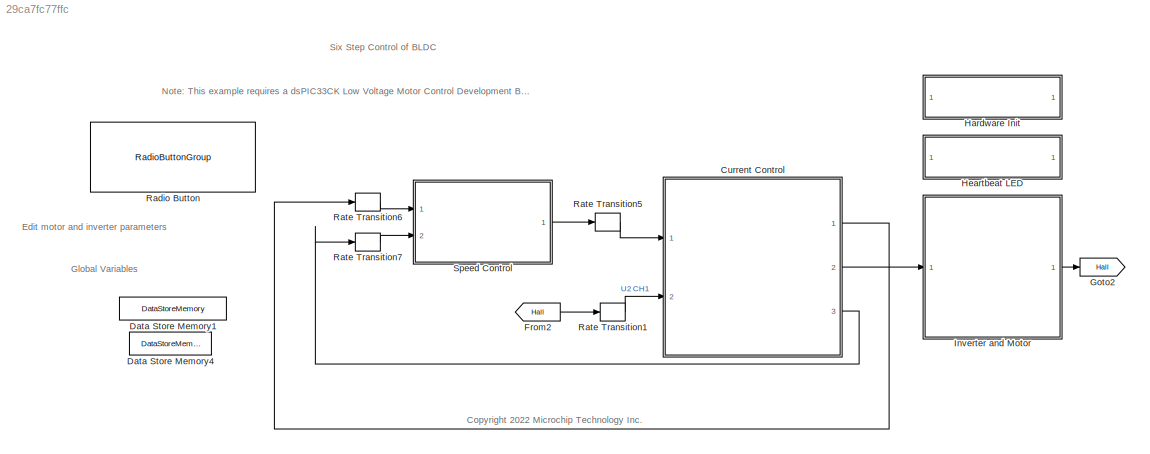
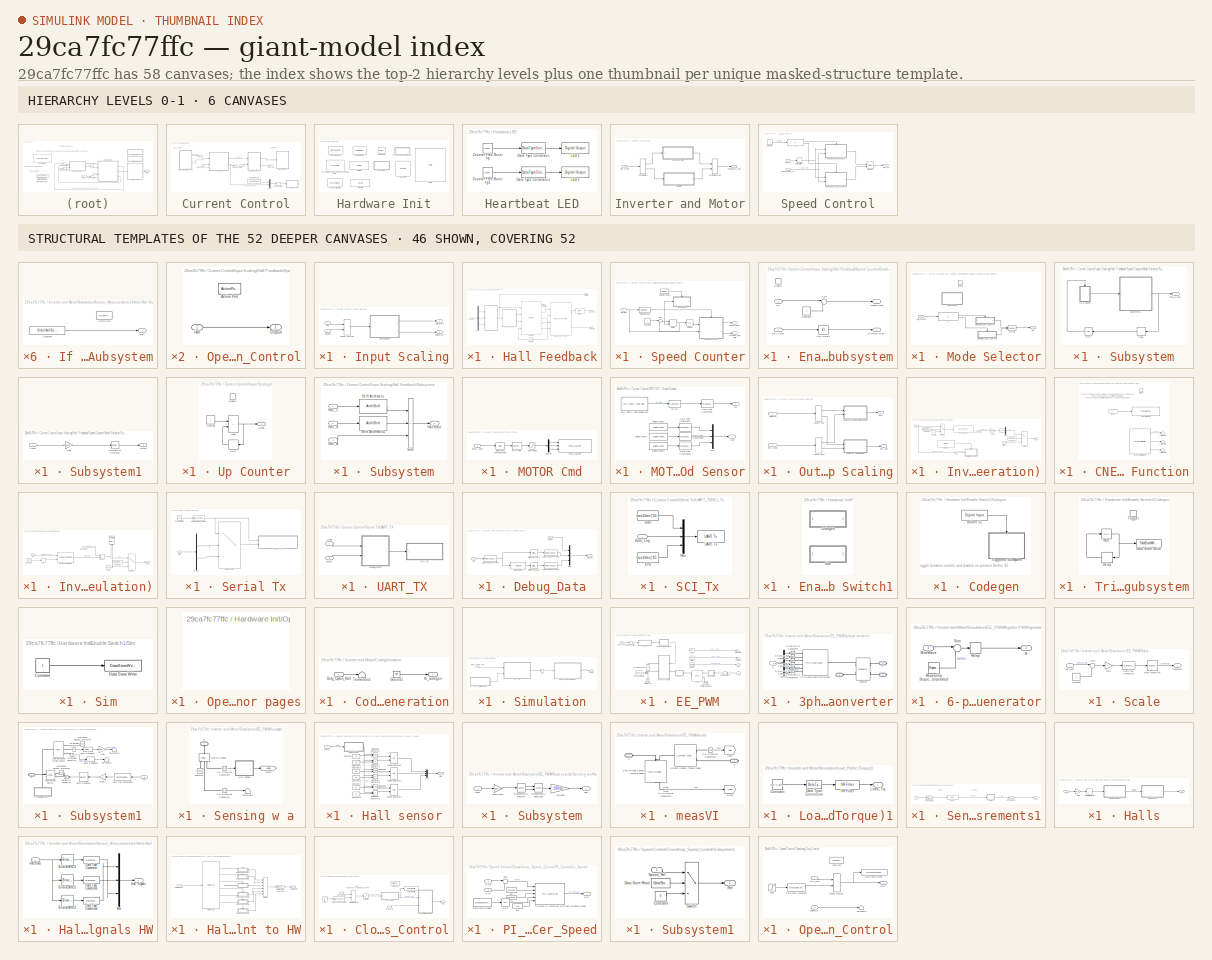
[diagram: thumbnail index - top-2 hierarchy levels (6 canvases) + 46 structural-template representatives of the remaining 52 canvases]
MODEL slx_29ca7fc77ffc
KIND model
CONFIG AbsTol = auto
CONFIG EnableMultiTasking = on
CONFIG FixedStep = auto
CONFIG InitFcn = mcb_bldc_sixstep_hall_lvmc_data;
CONFIG MaxStep = auto
CONFIG MinStep = auto
CONFIG PreLoadFcn = mcb_bldc_sixstep_hall_lvmc_data;
CONFIG RelTol = 1e-3
CONFIG SampleTimeConstraint = Unconstrained
CONFIG SolverName = FixedStepAuto
CONFIG StartTime = 0.0
CONFIG StopTime = 5
BLOCK [SubSystem] Current Control
  Ports = [2, 3]
  RequestExecContextInheritance = off
  VariantControl = Optimized
BLOCK [DataStoreRead] Current Control/Data Store Read
  DataStoreName = Ref_Speed_or_Duty
  IndexOptions = Index vector (dialog)
  Indices = 1
  OutputSizes = 1
  Ports = [0, 1]
BLOCK [Inport] Current Control/Duty
BLOCK [Outport] Current Control/Duty_Hall
  Port = 2
BLOCK [Inport] Current Control/Feedbacks_hall
  Port = 2
BLOCK [SubSystem] Current Control/Input Scaling
  Ports = [2, 2]
  RequestExecContextInheritance = off
BLOCK [Inport] Current Control/Input Scaling/Hall
BLOCK [SubSystem] Current Control/Input Scaling/Hall Feedback
  Ports = [1, 2]
  RequestExecContextInheritance = off
  TreatAsAtomicUnit = on
BLOCK [Demux] Current Control/Input Scaling/Hall Feedback/Demux
  Outputs = 3
  Ports = [1, 3]
BLOCK [Reference] Current Control/Input Scaling/Hall Feedback/Hall Speed and Position  REF=mcbpositiondecoderlib/Hall Speed and Position
  Ports = [4, 2]
  SourceBlock = mcbpositiondecoderlib/Hall Speed and Position
  SourceProductBaseCode = MT
  SourceType = Hall Speed and Position
BLOCK [Reference] Current Control/Input Scaling/Hall Feedback/Hall Validity  REF=mcbpositiondecoderlib/Hall Validity
  Ports = [4, 5]
  SourceBlock = mcbpositiondecoderlib/Hall Validity
  SourceProductBaseCode = MT
  SourceType = Hall Validity
BLOCK [Outport] Current Control/Input Scaling/Hall Feedback/HallState
  InitialOutput = 0
  VectorParamsAs1DForOutWhenUnconnected = off
BLOCK [Inport] Current Control/Input Scaling/Hall Feedback/Hall_Meas
BLOCK [Reference] Current Control/Input Scaling/Hall Feedback/IIR Filter  REF=mcbcontrolslib/IIR Filter
  Ports = [1, 1]
  SourceBlock = mcbcontrolslib/IIR Filter
  SourceProductBaseCode = MT
  SourceType = IIR Filter
BLOCK [SubSystem] Current Control/Input Scaling/Hall Feedback/Speed Counter
  Ports = [1, 2]
  RequestExecContextInheritance = off
BLOCK [Constant] Current Control/Input Scaling/Hall Feedback/Speed Counter/Constant4
  OutDataTypeStr = uint32
  SampleTime = -1
BLOCK [DataStoreRead] Current Control/Input Scaling/Hall Feedback/Speed Counter/Data Store Read
  DataStoreName = Enable
  IndexOptions = Index vector (dialog)
  Indices = 1
  OutputSizes = 1
  Ports = [0, 1]
BLOCK [Delay] Current Control/Input Scaling/Hall Feedback/Speed Counter/Delay
  DelayLength = 1
  ExternalReset = Level
  InitialCondition = 1
  InputPortMap = u0,r5
  Ports = [2, 1]
BLOCK [Reference] Current Control/Input Scaling/Hall Feedback/Speed Counter/Detect Change  REF=simulink/Logic and Bit
Operations/Detect
Change
  Ports = [1, 1]
  SourceBlock = simulink/Logic and Bit\nOperations/Detect\nChange
  SourceProductBaseCode = SL
  SourceType = Detect Change
BLOCK [SubSystem] Current Control/Input Scaling/Hall Feedback/Speed Counter/Enabled Subsystem
  Ports = [2, 2, 1]
  RequestExecContextInheritance = off
  TreatAsAtomicUnit = on
BLOCK [Constant] Current Control/Input Scaling/Hall Feedback/Speed Counter/Enabled Subsystem/Constant4
  OutDataTypeStr = uint32
  SampleTime = -1
BLOCK [EnablePort] Current Control/Input Scaling/Hall Feedback/Speed Counter/Enabled Subsystem/Enable
  Ports = []
BLOCK [Inport] Current Control/Input Scaling/Hall Feedback/Speed Counter/Enabled Subsystem/Hall_State
  Port = 2
BLOCK [Inport] Current Control/Input Scaling/Hall Feedback/Speed Counter/Enabled Subsystem/In1
BLOCK [Outport] Current Control/Input Scaling/Hall Feedback/Speed Counter/Enabled Subsystem/PrevHallState
  Port = 2
BLOCK [Outport] Current Control/Input Scaling/Hall Feedback/Speed Counter/Enabled Subsystem/Speed_Count
BLOCK [Sum] Current Control/Input Scaling/Hall Feedback/Speed Counter/Enabled Subsystem/Sum
  AccumDataTypeStr = uint32
  Inputs = |++
  OutDataTypeStr = uint32
  Ports = [2, 1]
  RndMeth = Simplest
BLOCK [UnitDelay] Current Control/Input Scaling/Hall Feedback/Speed Counter/Enabled Subsystem/Unit Delay1
  HasFrameUpgradeWarning = on
  InitialCondition = 1
  SampleTime = -1
BLOCK [Inport] Current Control/Input Scaling/Hall Feedback/Speed Counter/Hall_State
BLOCK [SubSystem] Current Control/Input Scaling/Hall Feedback/Speed Counter/Mode Selector
  Commented = on
  Ports = [1, 1, 1]
  RequestExecContextInheritance = off
BLOCK [EnablePort] Current Control/Input Scaling/Hall Feedback/Speed Counter/Mode Selector/Enable
  Ports = []
BLOCK [Outport] Current Control/Input Scaling/Hall Feedback/Speed Counter/Mode Selector/Hall
BLOCK [Inport] Current Control/Input Scaling/Hall Feedback/Speed Counter/Mode Selector/Hall_Change
BLOCK [If] Current Control/Input Scaling/Hall Feedback/Speed Counter/Mode Selector/If
  IfExpression = u1 == 0
  Ports = [1, 2]
BLOCK [Merge] Current Control/Input Scaling/Hall Feedback/Speed Counter/Mode Selector/Merge
  Ports = [2, 1]
BLOCK [SubSystem] Current Control/Input Scaling/Hall Feedback/Speed Counter/Mode Selector/Openloop_Duty_Control
  Ports = [1, 1, 0, 0, 0, 0, 0, 1]
  RequestExecContextInheritance = off
BLOCK [ActionPort] Current Control/Input Scaling/Hall Feedback/Speed Counter/Mode Selector/Openloop_Duty_Control/Action Port
  ActionPortLabel = if(u1 == 0)
BLOCK [Inport] Current Control/Input Scaling/Hall Feedback/Speed Counter/Mode Selector/Openloop_Duty_Control/Hall
BLOCK [Outport] Current Control/Input Scaling/Hall Feedback/Speed Counter/Mode Selector/Openloop_Duty_Control/Outport
BLOCK [SubSystem] Current Control/Input Scaling/Hall Feedback/Speed Counter/Mode Selector/Openloop_Duty_Control1
  Ports = [1, 1, 0, 0, 0, 0, 0, 1]
  RequestExecContextInheritance = off
BLOCK [ActionPort] Current Control/Input Scaling/Hall Feedback/Speed Counter/Mode Selector/Openloop_Duty_Control1/Action Port
  ActionPortLabel = else
BLOCK [Inport] Current Control/Input Scaling/Hall Feedback/Speed Counter/Mode Selector/Openloop_Duty_Control1/Hall
BLOCK [Outport] Current Control/Input Scaling/Hall Feedback/Speed Counter/Mode Selector/Openloop_Duty_Control1/Outport
BLOCK [SubSystem] Current Control/Input Scaling/Hall Feedback/Speed Counter/Mode Selector/Subsystem
  Ports = [0, 1]
  RequestExecContextInheritance = off
BLOCK [Delay] Current Control/Input Scaling/Hall Feedback/Speed Counter/Mode Selector/Subsystem/Delay
  DelayLength = 1
  InputPortMap = u0
  Ports = [1, 1]
BLOCK [Logic] Current Control/Input Scaling/Hall Feedback/Speed Counter/Mode Selector/Subsystem/NOT
  AllPortsSameDT = off
  IconShape = distinctive
  Operator = NOT
  OutDataTypeStr = boolean
  Ports = [1, 1]
BLOCK [SubSystem] Current Control/Input Scaling/Hall Feedback/Speed Counter/Mode Selector/Subsystem/Subsystem1
  Ports = [1, 1]
  RequestExecContextInheritance = off
BLOCK [Reference] Current Control/Input Scaling/Hall Feedback/Speed Counter/Mode Selector/Subsystem/Subsystem1/Compare To Constant3  REF=simulink/Logic and Bit
Operations/Compare
To Constant
  Ports = [1, 1]
  SourceBlock = simulink/Logic and Bit\nOperations/Compare\nTo Constant
  SourceProductBaseCode = SL
  SourceType = Compare To Constant
BLOCK [Inport] Current Control/Input Scaling/Hall Feedback/Speed Counter/Mode Selector/Subsystem/Subsystem1/Count
BLOCK [Gain] Current Control/Input Scaling/Hall Feedback/Speed Counter/Mode Selector/Subsystem/Subsystem1/Gain
  Gain = 1/PWM_frequency
  OutDataTypeStr = dataType2
  RndMeth = Simplest
BLOCK [Outport] Current Control/Input Scaling/Hall Feedback/Speed Counter/Mode Selector/Subsystem/Subsystem1/Output
BLOCK [Outport] Current Control/Input Scaling/Hall Feedback/Speed Counter/Mode Selector/Subsystem/Time_Check
BLOCK [SubSystem] Current Control/Input Scaling/Hall Feedback/Speed Counter/Mode Selector/Subsystem/Up Counter
  Ports = [0, 1, 1]
  RequestExecContextInheritance = off
BLOCK [Sum] Current Control/Input Scaling/Hall Feedback/Speed Counter/Mode Selector/Subsystem/Up Counter/Add1
  IconShape = rectangular
  Ports = [2, 1]
  SaturateOnIntegerOverflow = on
BLOCK [Constant] Current Control/Input Scaling/Hall Feedback/Speed Counter/Mode Selector/Subsystem/Up Counter/Constant
  OutDataTypeStr = uint32
BLOCK [Outport] Current Control/Input Scaling/Hall Feedback/Speed Counter/Mode Selector/Subsystem/Up Counter/Count
  InitialOutput = 0
BLOCK [Delay] Current Control/Input Scaling/Hall Feedback/Speed Counter/Mode Selector/Subsystem/Up Counter/Delay
  DelayLength = 1
  InputPortMap = u0
  Ports = [1, 1]
BLOCK [EnablePort] Current Control/Input Scaling/Hall Feedback/Speed Counter/Mode Selector/Subsystem/Up Counter/Enable
  Ports = []
  StatesWhenEnabling = reset
BLOCK [Outport] Current Control/Input Scaling/Hall Feedback/Speed Counter/Previous_Hall_State
BLOCK [Outport] Current Control/Input Scaling/Hall Feedback/Speed Counter/Speed_Count
  Port = 2
BLOCK [Sum] Current Control/Input Scaling/Hall Feedback/Speed Counter/Sum
  AccumDataTypeStr = uint32
  Inputs = |++
  OutDataTypeStr = uint32
  Ports = [2, 1]
  RndMeth = Simplest
BLOCK [UnitDelay] Current Control/Input Scaling/Hall Feedback/Speed Counter/Unit Delay
  HasFrameUpgradeWarning = on
  InitialCondition = 1
  SampleTime = -1
BLOCK [Outport] Current Control/Input Scaling/Hall Feedback/Speed_PU
  InitialOutput = 0
  NameLocation = top
  Port = 2
  VectorParamsAs1DForOutWhenUnconnected = off
BLOCK [SubSystem] Current Control/Input Scaling/Hall Feedback/Subsystem
  Ports = [3, 1]
  RequestExecContextInheritance = off
BLOCK [Outport] Current Control/Input Scaling/Hall Feedback/Subsystem/HallState
BLOCK [Inport] Current Control/Input Scaling/Hall Feedback/Subsystem/Hall_A
  Port = 3
BLOCK [Inport] Current Control/Input Scaling/Hall Feedback/Subsystem/Hall_B
  Port = 2
BLOCK [Inport] Current Control/Input Scaling/Hall Feedback/Subsystem/Hall_C
BLOCK [ArithShift] Current Control/Input Scaling/Hall Feedback/Subsystem/Shift Arithmetic
  BitShiftDirection = Left
  BitShiftNumber = 2
  InputPortMap = u0
  NameLocation = right
  Ports = [1, 1]
BLOCK [ArithShift] Current Control/Input Scaling/Hall Feedback/Subsystem/Shift Arithmetic1
  BitShiftDirection = Left
  BitShiftNumber = 1
  InputPortMap = u0
  Ports = [1, 1]
BLOCK [Sum] Current Control/Input Scaling/Hall Feedback/Subsystem/Sum
  IconShape = rectangular
  Inputs = +++
  Ports = [3, 1]
BLOCK [Terminator] Current Control/Input Scaling/Hall Feedback/Terminator
BLOCK [Terminator] Current Control/Input Scaling/Hall Feedback/Terminator1
BLOCK [UnitDelay] Current Control/Input Scaling/Hall Feedback/Unit Delay
  HasFrameUpgradeWarning = on
  InitialCondition = 1
  NameLocation = top
  SampleTime = -1
BLOCK [Inport] Current Control/Input Scaling/Hall_Sim
  Port = 2
BLOCK [Outport] Current Control/Input Scaling/Hall_State
BLOCK [Outport] Current Control/Input Scaling/Speed_PU
  Port = 2
BLOCK [VariantSource] Current Control/Input Scaling/Variant Source1
  Ports = [2, 1]
BLOCK [SubSystem] Current Control/MOTOR - Board Sensor
  Ports = [0, 2]
  RequestExecContextInheritance = off
BLOCK [Reference] Current Control/MOTOR - Board Sensor/ADC dsPIC High Speed SAR  REF=MCHP_Blockset/Analog IO/ADC dsPIC
High Speed SAR
  Ports = [0, 1]
  SourceBlock = MCHP_Blockset/Analog IO/ADC dsPIC\nHigh Speed SAR
  SourceProductName = MPLAB Device Blocks for Simulink
  SourceType = ADC SAR for dsPIC EP GS family
  UserDataPersistent = on
BLOCK [DataTypeConversion] Current Control/MOTOR - Board Sensor/Data Type Conversion
  OutDataTypeStr = dataType
  RndMeth = Simplest
  SaturateOnIntegerOverflow = off
BLOCK [DataTypeConversion] Current Control/MOTOR - Board Sensor/Data Type Conversion1
  OutDataTypeStr = uint16
  RndMeth = Simplest
  SaturateOnIntegerOverflow = off
BLOCK [DataTypeConversion] Current Control/MOTOR - Board Sensor/Data Type Conversion2
  OutDataTypeStr = uint16
  RndMeth = Simplest
  SaturateOnIntegerOverflow = off
BLOCK [DataTypeConversion] Current Control/MOTOR - Board Sensor/Data Type Conversion3
  OutDataTypeStr = uint16
  RndMeth = Simplest
  SaturateOnIntegerOverflow = off
BLOCK [Reference] Current Control/MOTOR - Board Sensor/Digital Input1  REF=MCHP_Blockset/Digital IO/Digital Input
  Ports = [0, 1]
  SourceBlock = MCHP_Blockset/Digital IO/Digital Input
  SourceProductName = MPLAB Device Blocks for Simulink
  SourceType = Input driver for Digital Input Pins
BLOCK [Reference] Current Control/MOTOR - Board Sensor/Digital Input2  REF=MCHP_Blockset/Digital IO/Digital Input
  Ports = [0, 1]
  SourceBlock = MCHP_Blockset/Digital IO/Digital Input
  SourceProductName = MPLAB Device Blocks for Simulink
  SourceType = Input driver for Digital Input Pins
BLOCK [Reference] Current Control/MOTOR - Board Sensor/Digital Input3  REF=MCHP_Blockset/Digital IO/Digital Input
  Ports = [0, 1]
  SourceBlock = MCHP_Blockset/Digital IO/Digital Input
  SourceProductName = MPLAB Device Blocks for Simulink
  SourceType = Input driver for Digital Input Pins
BLOCK [Outport] Current Control/MOTOR - Board Sensor/Hall
  Port = 2
BLOCK [Mux] Current Control/MOTOR - Board Sensor/Mux
  DisplayOption = bar
  Inputs = 3
  Ports = [3, 1]
BLOCK [Outport] Current Control/MOTOR - Board Sensor/Pot
  VectorParamsAs1DForOutWhenUnconnected = off
BLOCK [DataTypeConversion] Current Control/MOTOR - Board Sensor/Q1.15
  ConvertRealWorld = Stored Integer (SI)
  OutDataTypeStr = fixdt(0,16,16)
  RndMeth = Floor
  SaturateOnIntegerOverflow = off
BLOCK [SubSystem] Current Control/MOTOR Cmd
  Ports = [1]
  RequestExecContextInheritance = off
BLOCK [Bias] Current Control/MOTOR Cmd/Dead time Compensation
  Bias = round( (inverter.deadtime/5e-5) *PWM1max )
  SaturateOnIntegerOverflow = off
BLOCK [Demux] Current Control/MOTOR Cmd/Demux
  Outputs = 3
  Ports = [1, 3]
BLOCK [Inport] Current Control/MOTOR Cmd/PWM (abc)
BLOCK [Reference] Current Control/MOTOR Cmd/PWM_HS_FEP  REF=MCHP_Blockset/PWM IO/PWM_HS_FEP
  Ports = [3]
  Priority = -2000
  SourceBlock = MCHP_Blockset/PWM IO/PWM_HS_FEP
  SourceProductName = MPLAB Device Blocks for Simulink
  SourceType = PWM High-Speed Fine-Edge-Placement
  UserDataPersistent = on
BLOCK [Saturate] Current Control/MOTOR Cmd/Saturation 
  LowerLimit = round( (inverter.deadtime/5e-5) *PWM1max )* 2
  UpperLimit = PWM1max
BLOCK [DataTypeConversion] Current Control/MOTOR Cmd/int to uint
  ConvertRealWorld = Stored Integer (SI)
  OutDataTypeStr = uint16
  RndMeth = Floor
  SaturateOnIntegerOverflow = off
BLOCK [Mux] Current Control/Mux
  DisplayOption = bar
  Inputs = 2
  Ports = [2, 1]
BLOCK [SubSystem] Current Control/Output Scaling
  Ports = [2, 2]
  RequestExecContextInheritance = off
BLOCK [Outport] Current Control/Output Scaling/Duty
BLOCK [Inport] Current Control/Output Scaling/Duty_Input
  Port = 2
BLOCK [Outport] Current Control/Output Scaling/Duty_Sim
  Port = 2
BLOCK [Inport] Current Control/Output Scaling/Hallstate
BLOCK [SubSystem] Current Control/Output Scaling/Inverter (Code Generation)
  Ports = [2, 1]
  RequestExecContextInheritance = off
BLOCK [Reference] Current Control/Output Scaling/Inverter (Code Generation)/C Function Call  REF=MCHP_Blockset/User Functions/C Function Call
  Ports = [1]
  SourceBlock = MCHP_Blockset/User Functions/C Function Call
  SourceProductName = MPLAB Device Blocks for Simulink
  SourceType = C Function Call
  UserDataPersistent = on
BLOCK [SubSystem] Current Control/Output Scaling/Inverter (Code Generation)/CNE Interrupt Function
  Ports = [1, 0, 0, 1]
  RequestExecContextInheritance = off
BLOCK [Reference] Current Control/Output Scaling/Inverter (Code Generation)/CNE Interrupt Function/C Function Call  REF=MCHP_Blockset/User Functions/C Function Call
  Ports = [1]
  SourceBlock = MCHP_Blockset/User Functions/C Function Call
  SourceProductName = MPLAB Device Blocks for Simulink
  SourceType = C Function Call
  UserDataPersistent = on
BLOCK [Reference] Current Control/Output Scaling/Inverter (Code Generation)/CNE Interrupt Function/Change Notification1  REF=MCHP_Blockset/Pulse Input//Output/Change Notification
  Ports = [0, 3]
  SourceBlock = MCHP_Blockset/Pulse Input//Output/Change Notification
  SourceProductName = MPLAB Device Blocks for Simulink
  SourceType = Input driver for Change Notification Peripheral
  UserDataPersistent = on
BLOCK [Inport] Current Control/Output Scaling/Inverter (Code Generation)/CNE Interrupt Function/Inport
BLOCK [Terminator] Current Control/Output Scaling/Inverter (Code Generation)/CNE Interrupt Function/Terminator
BLOCK [Terminator] Current Control/Output Scaling/Inverter (Code Generation)/CNE Interrupt Function/Terminator1
BLOCK [Terminator] Current Control/Output Scaling/Inverter (Code Generation)/CNE Interrupt Function/Terminator2
BLOCK [TriggerPort] Current Control/Output Scaling/Inverter (Code Generation)/CNE Interrupt Function/Trigger
  PortDimensions = 1
  Ports = []
  StatesWhenEnabling = held
  TriggerType = function-call
  VariantControl = (inherit)
BLOCK [Outport] Current Control/Output Scaling/Inverter (Code Generation)/Duty
  VectorParamsAs1DForOutWhenUnconnected = off
BLOCK [Inport] Current Control/Output Scaling/Inverter (Code Generation)/Duty_Input
  Port = 2
BLOCK [DataStoreRead] Current Control/Output Scaling/Inverter (Code Generation)/Enable
  DataStoreName = Enable
  IndexOptions = Index vector (dialog)
  Indices = 1
  OutputSizes = 1
  Ports = [0, 1]
BLOCK [DataStoreRead] Current Control/Output Scaling/Inverter (Code Generation)/Enable1
  DataStoreName = Enable
  IndexOptions = Index vector (dialog)
  Indices = 1
  OutputSizes = 1
  Ports = [0, 1]
BLOCK [Gain] Current Control/Output Scaling/Inverter (Code Generation)/Gain
  Gain = PWM1max
  OutDataTypeStr = uint16
BLOCK [Inport] Current Control/Output Scaling/Inverter (Code Generation)/Hall
BLOCK [Reference] Current Control/Output Scaling/Inverter (Code Generation)/Interrupt  REF=MCHP_Blockset/System Functions/Interrupt
  Ports = [0, 1]
  SourceBlock = MCHP_Blockset/System Functions/Interrupt
  SourceProductName = MPLAB Device Blocks for Simulink
  SourceType = Interruption (Call Simulink Subfunction)
BLOCK [Mux] Current Control/Output Scaling/Inverter (Code Generation)/Mux
  DisplayOption = bar
  Inputs = 3
  Ports = [3, 1]
BLOCK [RateTransition] Current Control/Output Scaling/Inverter (Code Generation)/RT
  Deterministic = off
BLOCK [Constant] Current Control/Output Scaling/Inverter (Code Generation)/Sector 0
  OutDataTypeStr = Inherit: Inherit via back propagation
  Value = 0
BLOCK [Switch] Current Control/Output Scaling/Inverter (Code Generation)/Switch1
  Criteria = u2 ~= 0
  InputSameDT = off
  RndMeth = Simplest
  SaturateOnIntegerOverflow = off
BLOCK [Switch] Current Control/Output Scaling/Inverter (Code Generation)/Switch2
  Criteria = u2 ~= 0
  InputSameDT = off
  RndMeth = Simplest
  SaturateOnIntegerOverflow = off
BLOCK [Constant] Current Control/Output Scaling/Inverter (Code Generation)/stop
  OutDataTypeStr = Inherit: Inherit via back propagation
  Value = [0 0 0]
BLOCK [SubSystem] Current Control/Output Scaling/Inverter (Simulation)
  Ports = [2, 1]
  RequestExecContextInheritance = off
BLOCK [Constant] Current Control/Output Scaling/Inverter (Simulation)/Constant1
  OutDataTypeStr = uint16
  Value = 1000
BLOCK [DataTypeDuplicate] Current Control/Output Scaling/Inverter (Simulation)/Data Type Duplicate
  Ports = [2]
BLOCK [Outport] Current Control/Output Scaling/Inverter (Simulation)/Duty
  VectorParamsAs1DForOutWhenUnconnected = off
BLOCK [Inport] Current Control/Output Scaling/Inverter (Simulation)/Duty_Input
  Port = 2
BLOCK [DataStoreRead] Current Control/Output Scaling/Inverter (Simulation)/Enable
  DataStoreName = Enable
  IndexOptions = Index vector (dialog)
  Indices = 1
  OutputSizes = 1
  Ports = [0, 1]
BLOCK [Inport] Current Control/Output Scaling/Inverter (Simulation)/Hall
BLOCK [Product] Current Control/Output Scaling/Inverter (Simulation)/Product
  OutDataTypeStr = Inherit: Same as first input
  Ports = [2, 1]
  RndMeth = Simplest
BLOCK [Signum] Current Control/Output Scaling/Inverter (Simulation)/Sign
BLOCK [Reference] Current Control/Output Scaling/Inverter (Simulation)/Six Step Commutation  REF=mcbcontrolslib/Six Step Commutation
  Ports = [2, 1]
  SourceBlock = mcbcontrolslib/Six Step Commutation
  SourceProductBaseCode = MT
  SourceType = Six-Step Commutation
BLOCK [Switch] Current Control/Output Scaling/Inverter (Simulation)/Switch1
  InputSameDT = off
  RndMeth = Simplest
  SaturateOnIntegerOverflow = off
  Threshold = 0.5
BLOCK [Constant] Current Control/Output Scaling/Inverter (Simulation)/stop
  OutDataTypeStr = Inherit: Inherit via back propagation
  Value = [0 0 0 0 0 0]
BLOCK [VariantSink] Current Control/Output Scaling/Variant Sink
  Ports = [1, 2]
  VariantControlMode = sim codegen switching
BLOCK [VariantSink] Current Control/Output Scaling/Variant Sink1
  Ports = [1, 2]
  VariantControlMode = sim codegen switching
BLOCK [Outport] Current Control/Pot
BLOCK [RateTransition] Current Control/Rate Transition
  Deterministic = off
  Integrity = off
  OutPortSampleTime = Ts*100
BLOCK [SubSystem] Current Control/Serial Tx
  Ports = [1]
  RequestExecContextInheritance = off
BLOCK [Reference] Current Control/Serial Tx/Counter Limited  REF=simulink/Sources/Counter
Limited
  Ports = [0, 1]
  SourceBlock = simulink/Sources/Counter\nLimited
  SourceProductBaseCode = SL
  SourceType = Counter Limited
BLOCK [Inport] Current Control/Serial Tx/Data
BLOCK [DataTypeConversion] Current Control/Serial Tx/Data Type Conversion
  OutDataTypeStr = uint8
  RndMeth = Simplest
  SaturateOnIntegerOverflow = off
BLOCK [Demux] Current Control/Serial Tx/Demux
  Outputs = 2
  Ports = [1, 2]
BLOCK [MultiPortSwitch] Current Control/Serial Tx/Index Vector
  DataPortOrder = Zero-based contiguous
  DiagnosticForDefault = None
  InputSameDT = off
  Inputs = 2
  OutDataTypeStr = Inherit: Same as first data input
  Ports = [3, 1]
  RndMeth = Simplest
  SaturateOnIntegerOverflow = off
  zeroidx = on
BLOCK [SubSystem] Current Control/Serial Tx/UART_TX
  Ports = [2]
  RequestExecContextInheritance = off
BLOCK [Inport] Current Control/Serial Tx/UART_TX/Count
BLOCK [Inport] Current Control/Serial Tx/UART_TX/Data
  Port = 2
BLOCK [SubSystem] Current Control/Serial Tx/UART_TX/Debug_Data
  Ports = [2, 1]
  RequestExecContextInheritance = off
BLOCK [Reference] Current Control/Serial Tx/UART_TX/Debug_Data/Bitwise Operator2  REF=simulink/Logic and Bit
Operations/Bitwise
Operator
  Ports = [1, 1]
  SourceBlock = simulink/Logic and Bit\nOperations/Bitwise\nOperator
  SourceProductBaseCode = SL
  SourceType = Bitwise Operator
BLOCK [Reference] Current Control/Serial Tx/UART_TX/Debug_Data/Bitwise Operator3  REF=simulink/Logic and Bit
Operations/Bitwise
Operator
  Ports = [1, 1]
  SourceBlock = simulink/Logic and Bit\nOperations/Bitwise\nOperator
  SourceProductBaseCode = SL
  SourceType = Bitwise Operator
BLOCK [Inport] Current Control/Serial Tx/UART_TX/Debug_Data/Count
BLOCK [Inport] Current Control/Serial Tx/UART_TX/Debug_Data/Data
  Port = 2
BLOCK [DataTypeConversion] Current Control/Serial Tx/UART_TX/Debug_Data/Data Type Conversion1
  OutDataTypeStr = uint8
  RndMeth = Simplest
  SaturateOnIntegerOverflow = off
BLOCK [DataTypeConversion] Current Control/Serial Tx/UART_TX/Debug_Data/Data Type Conversion2
  OutDataTypeStr = uint8
  RndMeth = Simplest
  SaturateOnIntegerOverflow = off
BLOCK [DataTypeConversion] Current Control/Serial Tx/UART_TX/Debug_Data/Data Type Conversion3
  ConvertRealWorld = Stored Integer (SI)
  OutDataTypeStr = uint16
  RndMeth = Simplest
  SaturateOnIntegerOverflow = off
BLOCK [Outport] Current Control/Serial Tx/UART_TX/Debug_Data/Data_log
BLOCK [Mux] Current Control/Serial Tx/UART_TX/Debug_Data/Mux
  DisplayOption = bar
  Inputs = 3
  Ports = [3, 1]
BLOCK [ArithShift] Current Control/Serial Tx/UART_TX/Debug_Data/Shift Arithmetic2
  BitShiftDirection = Right
  BitShiftNumber = 8
  InputPortMap = u0
  Ports = [1, 1]
BLOCK [SubSystem] Current Control/Serial Tx/UART_TX/SCI_Tx
  Ports = [1]
  RequestExecContextInheritance = off
BLOCK [Inport] Current Control/Serial Tx/UART_TX/SCI_Tx/Data_Log
BLOCK [Constant] Current Control/Serial Tx/UART_TX/SCI_Tx/End
  OutDataTypeStr = uint8
  Value = hex2dec('45')
BLOCK [Mux] Current Control/Serial Tx/UART_TX/SCI_Tx/Mux
  DisplayOption = bar
  Inputs = 3
  Ports = [3, 1]
BLOCK [Constant] Current Control/Serial Tx/UART_TX/SCI_Tx/Start
  OutDataTypeStr = uint8
  Value = hex2dec('53')
BLOCK [Reference] Current Control/Serial Tx/UART_TX/SCI_Tx/UART Tx  REF=MCHP_Blockset/BUS UART/UART Tx
  Ports = [1]
  SourceBlock = MCHP_Blockset/BUS UART/UART Tx
  SourceProductName = MPLAB Device Blocks for Simulink
  SourceType = UART Tx Output Driver
BLOCK [Outport] Current Control/Speed_PU
  Port = 3
BLOCK [DataStoreMemory] Data Store Memory1
  DataStoreName = Ref_Speed_or_Duty
  OutDataTypeStr = dataType
  ShowAdditionalParam = off
BLOCK [DataStoreMemory] Data Store Memory4
  DataStoreName = Enable
  OutDataTypeStr = boolean
  ShowAdditionalParam = off
BLOCK [From] From2
  GotoTag = Hall
BLOCK [Goto] Goto2
  GotoTag = Hall
BLOCK [SubSystem] Hardware Init
  Ports = []
  RequestExecContextInheritance = off
BLOCK [Reference] Hardware Init/Compiler Options  REF=MCHP_Blockset/System Configuration/Compiler Options
  Ports = []
  Priority = 1
  SourceBlock = MCHP_Blockset/System Configuration/Compiler Options
  SourceProductName = MPLAB Device Blocks for Simulink
BLOCK [Reference] Hardware Init/Data Sheet  REF=MCHP_Blockset/System Info/Data Sheet
  AttributesFormatString = %<cpy_MCHP_Id>
  Ports = []
  SourceBlock = MCHP_Blockset/System Info/Data Sheet
  SourceProductName = MPLAB Device Blocks for Simulink
BLOCK [SubSystem] Hardware Init/Enable Switch1
  Ports = []
  RequestExecContextInheritance = off
  Variant = on
  VariantControlMode = sim codegen switching
BLOCK [SubSystem] Hardware Init/Enable Switch1/Codegen
  Ports = []
  RequestExecContextInheritance = off
  VariantControl = (codegen)
BLOCK [Reference] Hardware Init/Enable Switch1/Codegen/Button S2  REF=MCHP_Blockset/Digital IO/Digital Input
  Ports = [0, 1]
  SourceBlock = MCHP_Blockset/Digital IO/Digital Input
  SourceProductName = MPLAB Device Blocks for Simulink
  SourceType = Input driver for Digital Input Pins
BLOCK [SubSystem] Hardware Init/Enable Switch1/Codegen/Triggered Subsystem
  Ports = [0, 0, 0, 1]
  RequestExecContextInheritance = off
  TreatAsAtomicUnit = on
BLOCK [DataStoreWrite] Hardware Init/Enable Switch1/Codegen/Triggered Subsystem/Data Store Write
  DataStoreName = Enable
  IndexOptions = Index vector (dialog)
  Indices = 1
  OutputSizes = 1
  Ports = [1]
BLOCK [Delay] Hardware Init/Enable Switch1/Codegen/Triggered Subsystem/Delay
  DelayLength = 1
  InitialCondition = 0
  InputPortMap = u0
  Ports = [1, 1]
BLOCK [Logic] Hardware Init/Enable Switch1/Codegen/Triggered Subsystem/NOT
  AllPortsSameDT = off
  IconShape = distinctive
  Operator = NOT
  OutDataTypeStr = boolean
  Ports = [1, 1]
BLOCK [TriggerPort] Hardware Init/Enable Switch1/Codegen/Triggered Subsystem/Trigger
  Ports = []
  StatesWhenEnabling = held
  TriggerType = falling
  VariantControl = Variant
BLOCK [SubSystem] Hardware Init/Enable Switch1/Sim
  Ports = []
  RequestExecContextInheritance = off
  VariantControl = (sim)
BLOCK [Constant] Hardware Init/Enable Switch1/Sim/Constant
  OutDataTypeStr = Inherit: Inherit via back propagation
BLOCK [DataStoreWrite] Hardware Init/Enable Switch1/Sim/Data Store Write
  DataStoreName = Enable
  IndexOptions = Index vector (dialog)
  Indices = 1
  OutputSizes = 1
  Ports = [1]
BLOCK [Reference] Hardware Init/Microchip Master  REF=MCHP_Blockset/System Configuration/Microchip Master
  Ports = []
  Priority = 1
  SourceBlock = MCHP_Blockset/System Configuration/Microchip Master
  SourceProductName = MPLAB Device Blocks for Simulink
BLOCK [Reference] Hardware Init/Model Info  REF=simulink/Model-Wide
Utilities/Model Info
  Ports = []
  SourceBlock = simulink/Model-Wide\nUtilities/Model Info
  SourceProductBaseCode = SL
  SourceType = CMBlock
BLOCK [Reference] Hardware Init/Op-Amp  REF=MCHP_Blockset/Analog IO/Op-Amp
  Ports = []
  Priority = -2000
  SourceBlock = MCHP_Blockset/Analog IO/Op-Amp
  SourceProductName = MPLAB Device Blocks for Simulink
  SourceType = Configure on chip Op AMP
  UserDataPersistent = on
BLOCK [SubSystem] Hardware Init/Open Board and Motor pages
  OpenFcn = web('www.microchip.com/DevelopmentTools/ProductDetails.aspx?PartNO=DM330021-2','-browser');\npause(1);\nweb('http://www.microchipdirect.com/productsearch.aspx?keywords=AC300020','-browser');\npause(1);\nweb('www.microchipdirect.com/ProductSearch.aspx?keywords=AC300022','-browser');
  Ports = []
  RequestExecContextInheritance = off
BLOCK [Reference] Hardware Init/Port Info  REF=MCHP_Blockset/System Info/Port Info
  Ports = []
  SourceBlock = MCHP_Blockset/System Info/Port Info
  SourceProductName = MPLAB Device Blocks for Simulink
BLOCK [Reference] Hardware Init/Tasks State Show base rate Task on pin D8 (PIM)  REF=MCHP_Blockset/Profiling/Tasks State
  Ports = []
  SourceBlock = MCHP_Blockset/Profiling/Tasks State
  SourceProductName = MPLAB Device Blocks for Simulink
  SourceType = MCU Over-Load (Profile execution time)
BLOCK [Reference] Hardware Init/Timer Info  REF=MCHP_Blockset/System Info/Timer Info
  Ports = []
  SourceBlock = MCHP_Blockset/System Info/Timer Info
  SourceProductName = MPLAB Device Blocks for Simulink
BLOCK [Reference] Hardware Init/UART Configuration  REF=MCHP_Blockset/BUS UART/UART Configuration
  Ports = []
  SourceBlock = MCHP_Blockset/BUS UART/UART Configuration
  SourceProductName = MPLAB Device Blocks for Simulink
  SourceType = Configuration for UART peripheral
BLOCK [SubSystem] Heartbeat LED
  Ports = []
  RequestExecContextInheritance = off
BLOCK [Reference] Heartbeat LED/Counter Free-Running  REF=simulink/Sources/Counter
Free-Running
  Ports = [0, 1]
  SourceBlock = simulink/Sources/Counter\nFree-Running
  SourceProductBaseCode = SL
  SourceType = Counter Free-Running
BLOCK [Reference] Heartbeat LED/Counter Free-Running1  REF=simulink/Sources/Counter
Free-Running
  Ports = [0, 1]
  SourceBlock = simulink/Sources/Counter\nFree-Running
  SourceProductBaseCode = SL
  SourceType = Counter Free-Running
BLOCK [DataTypeConversion] Heartbeat LED/Data Type Conversion
  OutDataTypeStr = boolean
  RndMeth = Floor
  SaturateOnIntegerOverflow = off
BLOCK [DataTypeConversion] Heartbeat LED/Data Type Conversion1
  OutDataTypeStr = boolean
  RndMeth = Floor
  SaturateOnIntegerOverflow = off
BLOCK [Reference] Heartbeat LED/LED 1  REF=MCHP_Blockset/Digital IO/Digital Output
  Ports = [1]
  SourceBlock = MCHP_Blockset/Digital IO/Digital Output
  SourceProductName = MPLAB Device Blocks for Simulink
BLOCK [Reference] Heartbeat LED/LED 2  REF=MCHP_Blockset/Digital IO/Digital Output
  Ports = [1]
  SourceBlock = MCHP_Blockset/Digital IO/Digital Output
  SourceProductName = MPLAB Device Blocks for Simulink
BLOCK [SubSystem] Inverter and Motor
  Ports = [1, 1]
  RTWSystemCode = Reusable function
  RequestExecContextInheritance = off
BLOCK [SubSystem] Inverter and Motor/Codegeneration
  Ports = [1, 1]
  RequestExecContextInheritance = off
BLOCK [Inport] Inverter and Motor/Codegeneration/Duty_Cycles_Hall
BLOCK [Ground] Inverter and Motor/Codegeneration/Ground1
BLOCK [Terminator] Inverter and Motor/Codegeneration/Terminator1
BLOCK [Outport] Inverter and Motor/Codegeneration/fb_codegen
  VectorParamsAs1DForOutWhenUnconnected = off
BLOCK [Inport] Inverter and Motor/Duty_Cycles
BLOCK [Outport] Inverter and Motor/Feedbacks_hall
  NameLocation = top
  VectorParamsAs1DForOutWhenUnconnected = off
BLOCK [SubSystem] Inverter and Motor/Simulation
  Ports = [1, 1]
  RequestExecContextInheritance = off
BLOCK [Inport] Inverter and Motor/Simulation/Duty_Cycles_Hall
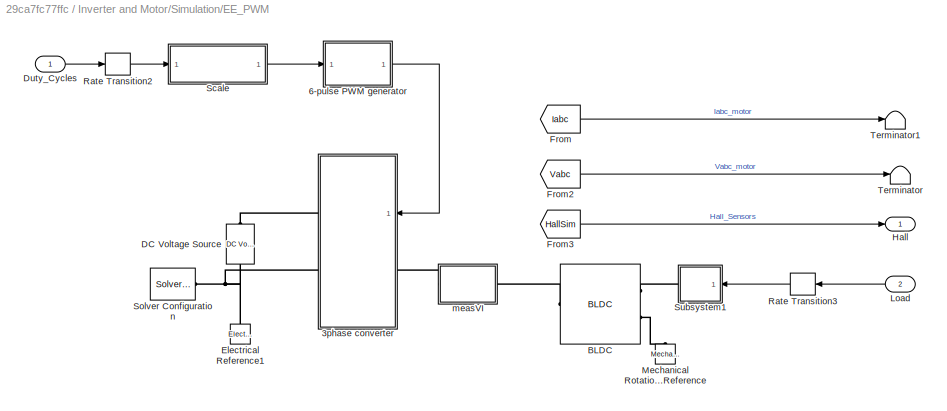
BLOCK [SubSystem] Inverter and Motor/Simulation/EE_PWM
  Ports = [2, 1]
  RequestExecContextInheritance = off
  VariantControl = (get_param([bdroot '/InverterSelected'], 'Value') == '1')
BLOCK [SubSystem] Inverter and Motor/Simulation/EE_PWM/3phase converter
  NameLocation = top
  Ports = [1, 0, 0, 0, 0, 1, 2]
  RequestExecContextInheritance = off
BLOCK [PMIOPort] Inverter and Motor/Simulation/EE_PWM/3phase converter/+
  Side = Right
BLOCK [PMIOPort] Inverter and Motor/Simulation/EE_PWM/3phase converter/-
  Port = 3
  Side = Right
BLOCK [Demux] Inverter and Motor/Simulation/EE_PWM/3phase converter/Demux
  Outputs = 6
  Ports = [1, 6]
BLOCK [Reference] Inverter and Motor/Simulation/EE_PWM/3phase converter/Inverter  REF=ee_lib/Semiconductors &
Converters/Converters/Converter
(Three-Phase)
  Ports = [0, 0, 0, 0, 0, 2, 2]
  SourceBlock = ee_lib/Semiconductors &\nConverters/Converters/Converter\n(Three-Phase)
  SourceProductBaseCode = PS
  SourceType = Converter\n(Three-Phase)
BLOCK [Reference] Inverter and Motor/Simulation/EE_PWM/3phase converter/Simulink-PS Converter  REF=nesl_utility/Simulink-PS
Converter
  Ports = [1, 0, 0, 0, 0, 0, 1]
  SourceBlock = nesl_utility/Simulink-PS\nConverter
  SourceProductBaseCode = SS,PW,VE
  SourceType = Simulink-PS\nConverter
BLOCK [Reference] Inverter and Motor/Simulation/EE_PWM/3phase converter/Simulink-PS Converter1  REF=nesl_utility/Simulink-PS
Converter
  Ports = [1, 0, 0, 0, 0, 0, 1]
  SourceBlock = nesl_utility/Simulink-PS\nConverter
  SourceProductBaseCode = SS,PW,VE
  SourceType = Simulink-PS\nConverter
BLOCK [Reference] Inverter and Motor/Simulation/EE_PWM/3phase converter/Simulink-PS Converter2  REF=nesl_utility/Simulink-PS
Converter
  Ports = [1, 0, 0, 0, 0, 0, 1]
  SourceBlock = nesl_utility/Simulink-PS\nConverter
  SourceProductBaseCode = SS,PW,VE
  SourceType = Simulink-PS\nConverter
BLOCK [Reference] Inverter and Motor/Simulation/EE_PWM/3phase converter/Simulink-PS Converter3  REF=nesl_utility/Simulink-PS
Converter
  Ports = [1, 0, 0, 0, 0, 0, 1]
  SourceBlock = nesl_utility/Simulink-PS\nConverter
  SourceProductBaseCode = SS,PW,VE
  SourceType = Simulink-PS\nConverter
BLOCK [Reference] Inverter and Motor/Simulation/EE_PWM/3phase converter/Simulink-PS Converter4  REF=nesl_utility/Simulink-PS
Converter
  Ports = [1, 0, 0, 0, 0, 0, 1]
  SourceBlock = nesl_utility/Simulink-PS\nConverter
  SourceProductBaseCode = SS,PW,VE
  SourceType = Simulink-PS\nConverter
BLOCK [Reference] Inverter and Motor/Simulation/EE_PWM/3phase converter/Simulink-PS Converter5  REF=nesl_utility/Simulink-PS
Converter
  Ports = [1, 0, 0, 0, 0, 0, 1]
  SourceBlock = nesl_utility/Simulink-PS\nConverter
  SourceProductBaseCode = SS,PW,VE
  SourceType = Simulink-PS\nConverter
BLOCK [Reference] Inverter and Motor/Simulation/EE_PWM/3phase converter/Six-Pulse Gate Multiplexer  REF=ee_lib/Semiconductors &
Converters/Converters/Six-Pulse Gate
Multiplexer
  Ports = [0, 0, 0, 0, 0, 6, 1]
  SourceBlock = ee_lib/Semiconductors &\nConverters/Converters/Six-Pulse Gate\nMultiplexer
  SourceProductBaseCode = PS
  SourceType = Six-Pulse Gate\nMultiplexer
BLOCK [Inport] Inverter and Motor/Simulation/EE_PWM/3phase converter/g
BLOCK [PMIOPort] Inverter and Motor/Simulation/EE_PWM/3phase converter/~
  Port = 2
  Side = Left
BLOCK [SubSystem] Inverter and Motor/Simulation/EE_PWM/6-pulse PWM generator
  Ports = [1, 1]
  RequestExecContextInheritance = off
BLOCK [Inport] Inverter and Motor/Simulation/EE_PWM/6-pulse PWM generator/ModWave
BLOCK [Relay] Inverter and Motor/Simulation/EE_PWM/6-pulse PWM generator/Relay
BLOCK [Reference] Inverter and Motor/Simulation/EE_PWM/6-pulse PWM generator/Repeating Sequence Interpolated  REF=simulink/Sources/Repeating
Sequence
Interpolated
  Ports = [0, 1]
  SourceBlock = simulink/Sources/Repeating\nSequence\nInterpolated
  SourceProductBaseCode = SL
  SourceType = Repeating Sequence Interpolated
BLOCK [Sum] Inverter and Motor/Simulation/EE_PWM/6-pulse PWM generator/Sum
  Inputs = |+-
  Ports = [2, 1]
BLOCK [Outport] Inverter and Motor/Simulation/EE_PWM/6-pulse PWM generator/g
  NameLocation = top
BLOCK [Reference] Inverter and Motor/Simulation/EE_PWM/BLDC  REF=ee_lib/Electromechanical/Permanent Magnet/BLDC
  Ports = [0, 0, 0, 0, 0, 1, 2]
  SourceBlock = ee_lib/Electromechanical/Permanent Magnet/BLDC
  SourceProductBaseCode = PS
  SourceType = BLDC
BLOCK [Reference] Inverter and Motor/Simulation/EE_PWM/DC Voltage Source  REF=fl_lib/Electrical/Electrical Sources/DC Voltage Source
  NameLocation = left
  Ports = [0, 0, 0, 0, 0, 1, 1]
  SourceBlock = fl_lib/Electrical/Electrical Sources/DC Voltage Source
  SourceProductBaseCode = PW,SS,VE
  SourceType = DC Voltage Source
BLOCK [Inport] Inverter and Motor/Simulation/EE_PWM/Duty_Cycles
BLOCK [Reference] Inverter and Motor/Simulation/EE_PWM/Electrical Reference1  REF=fl_lib/Electrical/Electrical Elements/Electrical Reference
  NameLocation = right
  Ports = [0, 0, 0, 0, 0, 1]
  SourceBlock = fl_lib/Electrical/Electrical Elements/Electrical Reference
  SourceProductBaseCode = PW,SS,VE
  SourceType = Electrical Reference
BLOCK [From] Inverter and Motor/Simulation/EE_PWM/From
  GotoTag = Iabc
  TagVisibility = global
BLOCK [From] Inverter and Motor/Simulation/EE_PWM/From2
  GotoTag = Vabc
  TagVisibility = global
BLOCK [From] Inverter and Motor/Simulation/EE_PWM/From3
  GotoTag = HallSim
  TagVisibility = global
BLOCK [Outport] Inverter and Motor/Simulation/EE_PWM/Hall
BLOCK [Inport] Inverter and Motor/Simulation/EE_PWM/Load
  Port = 2
BLOCK [Reference] Inverter and Motor/Simulation/EE_PWM/Mechanical Rotational Reference  REF=fl_lib/Mechanical/Rotational Elements/Mechanical
Rotational Reference
  NameLocation = right
  Ports = [0, 0, 0, 0, 0, 1]
  SourceBlock = fl_lib/Mechanical/Rotational Elements/Mechanical\nRotational Reference
  SourceProductBaseCode = PW,SS,VE
  SourceType = Mechanical\nRotational Reference
BLOCK [RateTransition] Inverter and Motor/Simulation/EE_PWM/Rate Transition2
  Deterministic = off
  OutPortSampleTime = Ts_motor_simscape
BLOCK [RateTransition] Inverter and Motor/Simulation/EE_PWM/Rate Transition3
  Deterministic = off
  NameLocation = top
  OutPortSampleTime = Ts_motor_simscape
BLOCK [SubSystem] Inverter and Motor/Simulation/EE_PWM/Scale
  Ports = [1, 1]
  RequestExecContextInheritance = off
BLOCK [Constant] Inverter and Motor/Simulation/EE_PWM/Scale/Constant
  OutDataTypeStr = single
  SampleTime = -1
  Value = 0
BLOCK [DataTypeConversion] Inverter and Motor/Simulation/EE_PWM/Scale/Data Type Conversion
  RndMeth = Floor
  SaturateOnIntegerOverflow = off
BLOCK [Gain] Inverter and Motor/Simulation/EE_PWM/Scale/Gain
BLOCK [Outport] Inverter and Motor/Simulation/EE_PWM/Scale/ModWave
BLOCK [RateTransition] Inverter and Motor/Simulation/EE_PWM/Scale/Rate Transition
BLOCK [Sum] Inverter and Motor/Simulation/EE_PWM/Scale/Sum
  Inputs = |++
  Ports = [2, 1]
BLOCK [Inport] Inverter and Motor/Simulation/EE_PWM/Scale/duty_abc
BLOCK [Reference] Inverter and Motor/Simulation/EE_PWM/Solver Configuration  REF=nesl_utility/Solver
Configuration
  Ports = [0, 0, 0, 0, 0, 0, 1]
  SourceBlock = nesl_utility/Solver\nConfiguration
  SourceProductBaseCode = SS,PW,VE
  SourceType = Solver\nConfiguration
BLOCK [SubSystem] Inverter and Motor/Simulation/EE_PWM/Subsystem1
  NameLocation = top
  Ports = [1, 0, 0, 0, 0, 0, 1]
  RequestExecContextInheritance = off
BLOCK [DataTypeConversion] Inverter and Motor/Simulation/EE_PWM/Subsystem1/Data Type Conversion1
  NameLocation = top
  RndMeth = Floor
  SaturateOnIntegerOverflow = off
BLOCK [Gain] Inverter and Motor/Simulation/EE_PWM/Subsystem1/Gain
  Gain = 1/bldc.N_base
BLOCK [Gain] Inverter and Motor/Simulation/EE_PWM/Subsystem1/Gain1
  Gain = -1
  NameLocation = top
BLOCK [Reference] Inverter and Motor/Simulation/EE_PWM/Subsystem1/Ideal Rotational Motion Sensor  REF=fl_lib/Mechanical/Mechanical Sensors/Ideal Rotational
Motion Sensor
  Ports = [0, 0, 0, 0, 0, 1, 3]
  SourceBlock = fl_lib/Mechanical/Mechanical Sensors/Ideal Rotational\nMotion Sensor
  SourceProductBaseCode = PW,SS,VE
  SourceType = Ideal Rotational\nMotion Sensor
BLOCK [Reference] Inverter and Motor/Simulation/EE_PWM/Subsystem1/Ideal Torque Source  REF=fl_lib/Mechanical/Mechanical Sources/Ideal Torque Source
  NameLocation = top
  Ports = [0, 0, 0, 0, 0, 1, 2]
  SourceBlock = fl_lib/Mechanical/Mechanical Sources/Ideal Torque Source
  SourceProductBaseCode = PW,SS,VE
  SourceType = Ideal Torque Source
BLOCK [Reference] Inverter and Motor/Simulation/EE_PWM/Subsystem1/Mechanical Rotational Reference1  REF=fl_lib/Mechanical/Rotational Elements/Mechanical
Rotational Reference
  NameLocation = top
  Ports = [0, 0, 0, 0, 0, 1]
  SourceBlock = fl_lib/Mechanical/Rotational Elements/Mechanical\nRotational Reference
  SourceProductBaseCode = PW,SS,VE
  SourceType = Mechanical\nRotational Reference
BLOCK [Reference] Inverter and Motor/Simulation/EE_PWM/Subsystem1/Mechanical Rotational Reference2  REF=fl_lib/Mechanical/Rotational Elements/Mechanical
Rotational Reference
  NameLocation = top
  Ports = [0, 0, 0, 0, 0, 1]
  SourceBlock = fl_lib/Mechanical/Rotational Elements/Mechanical\nRotational Reference
  SourceProductBaseCode = PW,SS,VE
  SourceType = Mechanical\nRotational Reference
BLOCK [Reference] Inverter and Motor/Simulation/EE_PWM/Subsystem1/PS-Simulink Converter  REF=nesl_utility/PS-Simulink
Converter
  Ports = [0, 1, 0, 0, 0, 1]
  SourceBlock = nesl_utility/PS-Simulink\nConverter
  SourceProductBaseCode = SS,PW,VE
  SourceType = PS-Simulink\nConverter
BLOCK [Reference] Inverter and Motor/Simulation/EE_PWM/Subsystem1/PS-Simulink Converter1  REF=nesl_utility/PS-Simulink
Converter
  Ports = [0, 1, 0, 0, 0, 1]
  SourceBlock = nesl_utility/PS-Simulink\nConverter
  SourceProductBaseCode = SS,PW,VE
  SourceType = PS-Simulink\nConverter
BLOCK [PMIOPort] Inverter and Motor/Simulation/EE_PWM/Subsystem1/R 
  Side = Right
BLOCK [RateTransition] Inverter and Motor/Simulation/EE_PWM/Subsystem1/Rate Transition1
  Deterministic = off
  NameLocation = top
BLOCK [RateTransition] Inverter and Motor/Simulation/EE_PWM/Subsystem1/Rate Transition2
  OutPortSampleTime = Ts
BLOCK [RateTransition] Inverter and Motor/Simulation/EE_PWM/Subsystem1/Rate Transition3
  OutPortSampleTime = Ts
BLOCK [SubSystem] Inverter and Motor/Simulation/EE_PWM/Subsystem1/Sensing w a
  NameLocation = top
  Ports = [0, 0, 0, 0, 0, 1]
  RequestExecContextInheritance = off
BLOCK [Goto] Inverter and Motor/Simulation/EE_PWM/Subsystem1/Sensing w a/Goto1
  GotoTag = HallSim
  TagVisibility = global
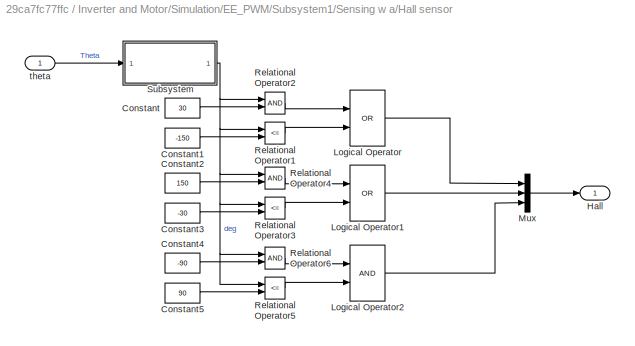
BLOCK [SubSystem] Inverter and Motor/Simulation/EE_PWM/Subsystem1/Sensing w a/Hall sensor
  Ports = [1, 1]
  RequestExecContextInheritance = off
BLOCK [Constant] Inverter and Motor/Simulation/EE_PWM/Subsystem1/Sensing w a/Hall sensor/Constant
  Value = 30
BLOCK [Constant] Inverter and Motor/Simulation/EE_PWM/Subsystem1/Sensing w a/Hall sensor/Constant1
  Value = -150
BLOCK [Constant] Inverter and Motor/Simulation/EE_PWM/Subsystem1/Sensing w a/Hall sensor/Constant2
  Value = 150
BLOCK [Constant] Inverter and Motor/Simulation/EE_PWM/Subsystem1/Sensing w a/Hall sensor/Constant3
  Value = -30
BLOCK [Constant] Inverter and Motor/Simulation/EE_PWM/Subsystem1/Sensing w a/Hall sensor/Constant4
  Value = -90
BLOCK [Constant] Inverter and Motor/Simulation/EE_PWM/Subsystem1/Sensing w a/Hall sensor/Constant5
  Value = 90
BLOCK [Outport] Inverter and Motor/Simulation/EE_PWM/Subsystem1/Sensing w a/Hall sensor/Hall
  VectorParamsAs1DForOutWhenUnconnected = off
BLOCK [Logic] Inverter and Motor/Simulation/EE_PWM/Subsystem1/Sensing w a/Hall sensor/Logical Operator
  AllPortsSameDT = off
  Operator = OR
  OutDataTypeStr = boolean
  Ports = [2, 1]
BLOCK [Logic] Inverter and Motor/Simulation/EE_PWM/Subsystem1/Sensing w a/Hall sensor/Logical Operator1
  AllPortsSameDT = off
  Operator = OR
  OutDataTypeStr = boolean
  Ports = [2, 1]
BLOCK [Logic] Inverter and Motor/Simulation/EE_PWM/Subsystem1/Sensing w a/Hall sensor/Logical Operator2
  AllPortsSameDT = off
  OutDataTypeStr = boolean
  Ports = [2, 1]
BLOCK [Mux] Inverter and Motor/Simulation/EE_PWM/Subsystem1/Sensing w a/Hall sensor/Mux
  DisplayOption = bar
  Inputs = 3
  Ports = [3, 1]
BLOCK [RelationalOperator] Inverter and Motor/Simulation/EE_PWM/Subsystem1/Sensing w a/Hall sensor/Relational Operator1
  Operator = <=
  Ports = [2, 1]
BLOCK [RelationalOperator] Inverter and Motor/Simulation/EE_PWM/Subsystem1/Sensing w a/Hall sensor/Relational Operator2
  Ports = [2, 1]
BLOCK [RelationalOperator] Inverter and Motor/Simulation/EE_PWM/Subsystem1/Sensing w a/Hall sensor/Relational Operator3
  Operator = <=
  Ports = [2, 1]
BLOCK [RelationalOperator] Inverter and Motor/Simulation/EE_PWM/Subsystem1/Sensing w a/Hall sensor/Relational Operator4
  Ports = [2, 1]
BLOCK [RelationalOperator] Inverter and Motor/Simulation/EE_PWM/Subsystem1/Sensing w a/Hall sensor/Relational Operator5
  Operator = <=
  Ports = [2, 1]
BLOCK [RelationalOperator] Inverter and Motor/Simulation/EE_PWM/Subsystem1/Sensing w a/Hall sensor/Relational Operator6
  Ports = [2, 1]
BLOCK [SubSystem] Inverter and Motor/Simulation/EE_PWM/Subsystem1/Sensing w a/Hall sensor/Subsystem
  Ports = [1, 1]
  RequestExecContextInheritance = off
BLOCK [Trigonometry] Inverter and Motor/Simulation/EE_PWM/Subsystem1/Sensing w a/Hall sensor/Subsystem/Trigonometric Function
  Operator = sincos
  Ports = [1, 2]
BLOCK [Trigonometry] Inverter and Motor/Simulation/EE_PWM/Subsystem1/Sensing w a/Hall sensor/Subsystem/Trigonometric Function2
  Operator = atan2
  Ports = [2, 1]
BLOCK [Outport] Inverter and Motor/Simulation/EE_PWM/Subsystem1/Sensing w a/Hall sensor/Subsystem/deg
  VectorParamsAs1DForOutWhenUnconnected = off
BLOCK [Gain] Inverter and Motor/Simulation/EE_PWM/Subsystem1/Sensing w a/Hall sensor/Subsystem/mech->elec
  Gain = bldc.p
BLOCK [Gain] Inverter and Motor/Simulation/EE_PWM/Subsystem1/Sensing w a/Hall sensor/Subsystem/rad->deg
  Gain = 180/pi
  OutDataTypeStr = Inherit: Same as input
  ParamDataTypeStr = Inherit: Same as input
  SaturateOnIntegerOverflow = on
BLOCK [Inport] Inverter and Motor/Simulation/EE_PWM/Subsystem1/Sensing w a/Hall sensor/Subsystem/theta
BLOCK [Inport] Inverter and Motor/Simulation/EE_PWM/Subsystem1/Sensing w a/Hall sensor/theta
BLOCK [Reference] Inverter and Motor/Simulation/EE_PWM/Subsystem1/Sensing w a/MRRef  REF=fl_lib/Mechanical/Rotational Elements/Mechanical
Rotational Reference
  NameLocation = left
  Ports = [0, 0, 0, 0, 0, 1]
  SourceBlock = fl_lib/Mechanical/Rotational Elements/Mechanical\nRotational Reference
  SourceProductBaseCode = PW,SS,VE
  SourceType = Mechanical\nRotational Reference
BLOCK [Reference] Inverter and Motor/Simulation/EE_PWM/Subsystem1/Sensing w a/Motion Sensor  REF=fl_lib/Mechanical/Mechanical Sensors/Ideal Rotational
Motion Sensor
  Ports = [0, 0, 0, 0, 0, 1, 3]
  SourceBlock = fl_lib/Mechanical/Mechanical Sensors/Ideal Rotational\nMotion Sensor
  SourceProductBaseCode = PW,SS,VE
  SourceType = Ideal Rotational\nMotion Sensor
BLOCK [Reference] Inverter and Motor/Simulation/EE_PWM/Subsystem1/Sensing w a/PS-Simulink Converter1  REF=nesl_utility/PS-Simulink
Converter
  Ports = [0, 1, 0, 0, 0, 1]
  SourceBlock = nesl_utility/PS-Simulink\nConverter
  SourceProductBaseCode = SS,PW,VE
  SourceType = PS-Simulink\nConverter
BLOCK [Reference] Inverter and Motor/Simulation/EE_PWM/Subsystem1/Sensing w a/PS-Simulink Converter2  REF=nesl_utility/PS-Simulink
Converter
  Ports = [0, 1, 0, 0, 0, 1]
  SourceBlock = nesl_utility/PS-Simulink\nConverter
  SourceProductBaseCode = SS,PW,VE
  SourceType = PS-Simulink\nConverter
BLOCK [PMIOPort] Inverter and Motor/Simulation/EE_PWM/Subsystem1/Sensing w a/R
  Side = Left
BLOCK [Terminator] Inverter and Motor/Simulation/EE_PWM/Subsystem1/Sensing w a/Terminator
BLOCK [Reference] Inverter and Motor/Simulation/EE_PWM/Subsystem1/Simulink-PS Converter  REF=nesl_utility/Simulink-PS
Converter
  NameLocation = top
  Ports = [1, 0, 0, 0, 0, 0, 1]
  SourceBlock = nesl_utility/Simulink-PS\nConverter
  SourceProductBaseCode = SS,PW,VE
  SourceType = Simulink-PS\nConverter
BLOCK [Terminator] Inverter and Motor/Simulation/EE_PWM/Subsystem1/Terminator
BLOCK [Terminator] Inverter and Motor/Simulation/EE_PWM/Subsystem1/Terminator1
BLOCK [Inport] Inverter and Motor/Simulation/EE_PWM/Subsystem1/Tm
BLOCK [Terminator] Inverter and Motor/Simulation/EE_PWM/Terminator
BLOCK [Terminator] Inverter and Motor/Simulation/EE_PWM/Terminator1
BLOCK [SubSystem] Inverter and Motor/Simulation/EE_PWM/measVI
  Ports = [0, 0, 0, 0, 0, 1, 1]
  RequestExecContextInheritance = off
BLOCK [Reference] Inverter and Motor/Simulation/EE_PWM/measVI/Current Sensor (Three-Phase)  REF=ee_lib/Sensors &
Transducers/Current Sensor
(Three-Phase)
  Ports = [0, 0, 0, 0, 0, 1, 2]
  SourceBlock = ee_lib/Sensors &\nTransducers/Current Sensor\n(Three-Phase)
  SourceProductBaseCode = PS
  SourceType = Current Sensor\n(Three-Phase)
BLOCK [Goto] Inverter and Motor/Simulation/EE_PWM/measVI/Goto
  GotoTag = Iabc
  TagVisibility = global
BLOCK [Goto] Inverter and Motor/Simulation/EE_PWM/measVI/Goto1
  GotoTag = Vabc
  TagVisibility = global
BLOCK [Reference] Inverter and Motor/Simulation/EE_PWM/measVI/Line Voltage Sensor (Three-Phase)  REF=ee_lib/Sensors &
Transducers/Line Voltage Sensor
(Three-Phase)
  NameLocation = right
  Ports = [0, 0, 0, 0, 0, 1, 1]
  SourceBlock = ee_lib/Sensors &\nTransducers/Line Voltage Sensor\n(Three-Phase)
  SourceProductBaseCode = PS
  SourceType = Line Voltage Sensor\n(Three-Phase)
BLOCK [Reference] Inverter and Motor/Simulation/EE_PWM/measVI/PS-Simulink Converter2  REF=nesl_utility/PS-Simulink
Converter
  Ports = [0, 1, 0, 0, 0, 1]
  SourceBlock = nesl_utility/PS-Simulink\nConverter
  SourceProductBaseCode = SS,PW,VE
  SourceType = PS-Simulink\nConverter
BLOCK [Reference] Inverter and Motor/Simulation/EE_PWM/measVI/PS-Simulink Converter3  REF=nesl_utility/PS-Simulink
Converter
  Ports = [0, 1, 0, 0, 0, 1]
  SourceBlock = nesl_utility/PS-Simulink\nConverter
  SourceProductBaseCode = SS,PW,VE
  SourceType = PS-Simulink\nConverter
BLOCK [PMIOPort] Inverter and Motor/Simulation/EE_PWM/measVI/~1
  Side = Left
BLOCK [PMIOPort] Inverter and Motor/Simulation/EE_PWM/measVI/~2
  Port = 2
  Side = Right
BLOCK [Outport] Inverter and Motor/Simulation/Hall_fb
BLOCK [SubSystem] Inverter and Motor/Simulation/Load_Profile (Torque)1
  Ports = [0, 1]
  RequestExecContextInheritance = off
BLOCK [Constant] Inverter and Motor/Simulation/Load_Profile (Torque)1/Constant
  Value = bldc.T_rated*0.01
BLOCK [DataTypeConversion] Inverter and Motor/Simulation/Load_Profile (Torque)1/Data Type Conversion
  OutDataTypeStr = single
  RndMeth = Floor
  SaturateOnIntegerOverflow = off
BLOCK [Reference] Inverter and Motor/Simulation/Load_Profile (Torque)1/IIR Filter  REF=mcbcontrolslib/IIR Filter
  Ports = [1, 1]
  SourceBlock = mcbcontrolslib/IIR Filter
  SourceProductBaseCode = MT
  SourceType = IIR Filter
BLOCK [Outport] Inverter and Motor/Simulation/Load_Profile (Torque)1/Load_Trq
  VectorParamsAs1DForOutWhenUnconnected = off
BLOCK [RateTransition] Inverter and Motor/Simulation/RT2
  Deterministic = off
  OutPortSampleTime = Ts_simulink
BLOCK [SubSystem] Inverter and Motor/Simulation/Sensor_Measurements1
  Ports = [1, 1]
  RequestExecContextInheritance = off
BLOCK [DataTypeConversion] Inverter and Motor/Simulation/Sensor_Measurements1/Data Type Conversion2
  OutDataTypeStr = single
  RndMeth = Simplest
  SaturateOnIntegerOverflow = off
BLOCK [DataTypeConversion] Inverter and Motor/Simulation/Sensor_Measurements1/Data Type Conversion6
  OutDataTypeStr = uint16
  RndMeth = Floor
  SaturateOnIntegerOverflow = off
BLOCK [Delay] Inverter and Motor/Simulation/Sensor_Measurements1/Delay2
  DelayLength = PI_params.delay_Position
  InputPortMap = u0
  Ports = [1, 1]
BLOCK [Inport] Inverter and Motor/Simulation/Sensor_Measurements1/Hall
BLOCK [Outport] Inverter and Motor/Simulation/Sensor_Measurements1/Hall_fb
BLOCK [SubSystem] Inverter and Motor/Simulation/Sensor_Measurements1/Halls
  Ports = [1, 1]
  RequestExecContextInheritance = off
BLOCK [Gain] Inverter and Motor/Simulation/Sensor_Measurements1/Halls/Gain
  Gain = [4 2 1]
  Multiplication = Matrix(K*u)
BLOCK [SubSystem] Inverter and Motor/Simulation/Sensor_Measurements1/Halls/Hall Signals HW
  Ports = [1, 1]
  RequestExecContextInheritance = off
BLOCK [Reference] Inverter and Motor/Simulation/Sensor_Measurements1/Halls/Hall Signals HW/Bitwise AND1  REF=simulink/Logic and Bit
Operations/Bitwise
Operator
  Ports = [1, 1]
  SourceBlock = simulink/Logic and Bit\nOperations/Bitwise\nOperator
  SourceProductBaseCode = SL
  SourceType = Bitwise Operator
BLOCK [Reference] Inverter and Motor/Simulation/Sensor_Measurements1/Halls/Hall Signals HW/Bitwise AND2  REF=simulink/Logic and Bit
Operations/Bitwise
Operator
  Ports = [1, 1]
  SourceBlock = simulink/Logic and Bit\nOperations/Bitwise\nOperator
  SourceProductBaseCode = SL
  SourceType = Bitwise Operator
BLOCK [Reference] Inverter and Motor/Simulation/Sensor_Measurements1/Halls/Hall Signals HW/Bitwise AND3  REF=simulink/Logic and Bit
Operations/Bitwise
Operator
  Ports = [1, 1]
  SourceBlock = simulink/Logic and Bit\nOperations/Bitwise\nOperator
  SourceProductBaseCode = SL
  SourceType = Bitwise Operator
BLOCK [DataTypeConversion] Inverter and Motor/Simulation/Sensor_Measurements1/Halls/Hall Signals HW/Data Type Conversion
  OutDataTypeStr = boolean
  RndMeth = Floor
  SaturateOnIntegerOverflow = off
BLOCK [DataTypeConversion] Inverter and Motor/Simulation/Sensor_Measurements1/Halls/Hall Signals HW/Data Type Conversion1
  OutDataTypeStr = boolean
  RndMeth = Floor
  SaturateOnIntegerOverflow = off
BLOCK [DataTypeConversion] Inverter and Motor/Simulation/Sensor_Measurements1/Halls/Hall Signals HW/Data Type Conversion2
  OutDataTypeStr = boolean
  RndMeth = Floor
  SaturateOnIntegerOverflow = off
BLOCK [Outport] Inverter and Motor/Simulation/Sensor_Measurements1/Halls/Hall Signals HW/Hall Signals
BLOCK [Inport] Inverter and Motor/Simulation/Sensor_Measurements1/Halls/Hall Signals HW/HallState
BLOCK [Mux] Inverter and Motor/Simulation/Sensor_Measurements1/Halls/Hall Signals HW/Mux
  DisplayOption = bar
  Inputs = 3
  Ports = [3, 1]
BLOCK [SubSystem] Inverter and Motor/Simulation/Sensor_Measurements1/Halls/Hall State Plant to HW
  Ports = [1, 1]
  RequestExecContextInheritance = off
BLOCK [DataTypeConversion] Inverter and Motor/Simulation/Sensor_Measurements1/Halls/Hall State Plant to HW/Data Type Conversion
  OutDataTypeStr = uint8
  RndMeth = Floor
  SaturateOnIntegerOverflow = off
BLOCK [Inport] Inverter and Motor/Simulation/Sensor_Measurements1/Halls/Hall State Plant to HW/HallStatePlant
BLOCK [Outport] Inverter and Motor/Simulation/Sensor_Measurements1/Halls/Hall State Plant to HW/HallstateHw
BLOCK [SubSystem] Inverter and Motor/Simulation/Sensor_Measurements1/Halls/Hall State Plant to HW/If Action Subsystem
  Ports = [0, 1, 0, 0, 0, 0, 0, 1]
  RequestExecContextInheritance = off
  TreatAsAtomicUnit = on
BLOCK [ActionPort] Inverter and Motor/Simulation/Sensor_Measurements1/Halls/Hall State Plant to HW/If Action Subsystem/Action Port
  ActionPortLabel = case [ 1 ]:
BLOCK [Constant] Inverter and Motor/Simulation/Sensor_Measurements1/Halls/Hall State Plant to HW/If Action Subsystem/Constant
  OutDataTypeStr = uint16
  Value = bldc.HallSequence(1)
BLOCK [Outport] Inverter and Motor/Simulation/Sensor_Measurements1/Halls/Hall State Plant to HW/If Action Subsystem/Out1
BLOCK [SubSystem] Inverter and Motor/Simulation/Sensor_Measurements1/Halls/Hall State Plant to HW/If Action Subsystem1
  Ports = [0, 1, 0, 0, 0, 0, 0, 1]
  RequestExecContextInheritance = off
  TreatAsAtomicUnit = on
BLOCK [ActionPort] Inverter and Motor/Simulation/Sensor_Measurements1/Halls/Hall State Plant to HW/If Action Subsystem1/Action Port
  ActionPortLabel = case [ 5 ]:
BLOCK [Constant] Inverter and Motor/Simulation/Sensor_Measurements1/Halls/Hall State Plant to HW/If Action Subsystem1/Constant
  OutDataTypeStr = uint16
  Value = bldc.HallSequence(2)
BLOCK [Outport] Inverter and Motor/Simulation/Sensor_Measurements1/Halls/Hall State Plant to HW/If Action Subsystem1/Out1
BLOCK [SubSystem] Inverter and Motor/Simulation/Sensor_Measurements1/Halls/Hall State Plant to HW/If Action Subsystem2
  Ports = [0, 1, 0, 0, 0, 0, 0, 1]
  RequestExecContextInheritance = off
  TreatAsAtomicUnit = on
BLOCK [ActionPort] Inverter and Motor/Simulation/Sensor_Measurements1/Halls/Hall State Plant to HW/If Action Subsystem2/Action Port
  ActionPortLabel = case [ 4 ]:
BLOCK [Constant] Inverter and Motor/Simulation/Sensor_Measurements1/Halls/Hall State Plant to HW/If Action Subsystem2/Constant
  OutDataTypeStr = uint16
  Value = bldc.HallSequence(3)
BLOCK [Outport] Inverter and Motor/Simulation/Sensor_Measurements1/Halls/Hall State Plant to HW/If Action Subsystem2/Out1
BLOCK [SubSystem] Inverter and Motor/Simulation/Sensor_Measurements1/Halls/Hall State Plant to HW/If Action Subsystem3
  Ports = [0, 1, 0, 0, 0, 0, 0, 1]
  RequestExecContextInheritance = off
  TreatAsAtomicUnit = on
BLOCK [ActionPort] Inverter and Motor/Simulation/Sensor_Measurements1/Halls/Hall State Plant to HW/If Action Subsystem3/Action Port
  ActionPortLabel = case [ 6 ]:
BLOCK [Constant] Inverter and Motor/Simulation/Sensor_Measurements1/Halls/Hall State Plant to HW/If Action Subsystem3/Constant
  OutDataTypeStr = uint16
  Value = bldc.HallSequence(4)
BLOCK [Outport] Inverter and Motor/Simulation/Sensor_Measurements1/Halls/Hall State Plant to HW/If Action Subsystem3/Out1
BLOCK [SubSystem] Inverter and Motor/Simulation/Sensor_Measurements1/Halls/Hall State Plant to HW/If Action Subsystem4
  Ports = [0, 1, 0, 0, 0, 0, 0, 1]
  RequestExecContextInheritance = off
  TreatAsAtomicUnit = on
BLOCK [ActionPort] Inverter and Motor/Simulation/Sensor_Measurements1/Halls/Hall State Plant to HW/If Action Subsystem4/Action Port
  ActionPortLabel = case [ 2 ]:
BLOCK [Constant] Inverter and Motor/Simulation/Sensor_Measurements1/Halls/Hall State Plant to HW/If Action Subsystem4/Constant
  OutDataTypeStr = uint16
  Value = bldc.HallSequence(5)
BLOCK [Outport] Inverter and Motor/Simulation/Sensor_Measurements1/Halls/Hall State Plant to HW/If Action Subsystem4/Out1
BLOCK [SubSystem] Inverter and Motor/Simulation/Sensor_Measurements1/Halls/Hall State Plant to HW/If Action Subsystem5
  Ports = [0, 1, 0, 0, 0, 0, 0, 1]
  RequestExecContextInheritance = off
  TreatAsAtomicUnit = on
BLOCK [ActionPort] Inverter and Motor/Simulation/Sensor_Measurements1/Halls/Hall State Plant to HW/If Action Subsystem5/Action Port
  ActionPortLabel = case [ 3 ]:
BLOCK [Constant] Inverter and Motor/Simulation/Sensor_Measurements1/Halls/Hall State Plant to HW/If Action Subsystem5/Constant
  OutDataTypeStr = uint16
  Value = bldc.HallSequence(6)
BLOCK [Outport] Inverter and Motor/Simulation/Sensor_Measurements1/Halls/Hall State Plant to HW/If Action Subsystem5/Out1
BLOCK [Merge] Inverter and Motor/Simulation/Sensor_Measurements1/Halls/Hall State Plant to HW/Merge
  Inputs = 6
  Ports = [6, 1]
BLOCK [SwitchCase] Inverter and Motor/Simulation/Sensor_Measurements1/Halls/Hall State Plant to HW/Switch Case
  CaseConditions = {1,5,4,6,2,3}
  Ports = [1, 6]
  ShowDefaultCase = off
BLOCK [Sum] Inverter and Motor/Simulation/Sensor_Measurements1/Halls/Sum of Elements
  IconShape = rectangular
  Inputs = +
  Ports = [1, 1]
BLOCK [Inport] Inverter and Motor/Simulation/Sensor_Measurements1/Halls/x
BLOCK [Outport] Inverter and Motor/Simulation/Sensor_Measurements1/Halls/y
  VectorParamsAs1DForOutWhenUnconnected = off
BLOCK [VariantSink] Inverter and Motor/Variant Sink1
  Ports = [1, 2]
BLOCK [VariantSource] Inverter and Motor/Variant Source2
  Ports = [2, 1]
BLOCK [RadioButtonGroup] Radio Button
  ButtonGroupName = Control_Loop
  LabelPosition = Hide
  SelectedLabel = Openloop_Duty_Control
BLOCK [RateTransition] Rate Transition1
  Deterministic = off
  OutPortSampleTime = Ts
BLOCK [RateTransition] Rate Transition5
  Deterministic = off
BLOCK [RateTransition] Rate Transition6
  Deterministic = off
BLOCK [RateTransition] Rate Transition7
  Deterministic = off
BLOCK [SubSystem] Speed Control
  Ports = [2, 1]
  RTWSystemCode = Reusable function
  RequestExecContextInheritance = off
  SystemSampleTime = Ts_speed
  TreatAsAtomicUnit = on
BLOCK [SubSystem] Speed Control/Closedloop_Speed_Control
  Ports = [2, 1, 0, 0, 0, 0, 0, 1]
  RequestExecContextInheritance = off
BLOCK [ActionPort] Speed Control/Closedloop_Speed_Control/Action Port
  ActionPortLabel = else
BLOCK [DataStoreWrite] Speed Control/Closedloop_Speed_Control/Data Store Write
  DataStoreName = Ref_Speed_or_Duty
  IndexOptions = Index vector (dialog)
  Indices = 1
  OutputSizes = 1
  Ports = [1]
BLOCK [DataTypeConversion] Speed Control/Closedloop_Speed_Control/Data Type Conversion
  RndMeth = Floor
  SaturateOnIntegerOverflow = off
BLOCK [Outport] Speed Control/Closedloop_Speed_Control/Duty
BLOCK [SubSystem] Speed Control/Closedloop_Speed_Control/PI_Controller_Speed
  Ports = [2, 1]
  RequestExecContextInheritance = off
BLOCK [DataStoreRead] Speed Control/Closedloop_Speed_Control/PI_Controller_Speed/Data Store Read2
  DataStoreName = Enable
  IndexOptions = Index vector (dialog)
  Indices = 1
  OutputSizes = 1
  Ports = [0, 1]
BLOCK [Reference] Speed Control/Closedloop_Speed_Control/PI_Controller_Speed/Discrete PI Controller with anti-windup & reset  REF=slpidlib/PID Controller
  Ports = [5, 1]
  SourceBlock = slpidlib/PID Controller
  SourceProductBaseCode = SL
  SourceType = PID 1dof
BLOCK [Outport] Speed Control/Closedloop_Speed_Control/PI_Controller_Speed/Duty
  VectorParamsAs1DForOutWhenUnconnected = off
BLOCK [Constant] Speed Control/Closedloop_Speed_Control/PI_Controller_Speed/Ki1
  NameLocation = top
  OutDataTypeStr = dataType2
  SampleTime = -1
  Value = PI_params.Ki_speed*Ts_speed*0.85
BLOCK [Constant] Speed Control/Closedloop_Speed_Control/PI_Controller_Speed/Ki2
  NameLocation = top
  OutDataTypeStr = dataType
  SampleTime = -1
  Value = 0.10
BLOCK [Constant] Speed Control/Closedloop_Speed_Control/PI_Controller_Speed/Kp1
  NameLocation = top
  OutDataTypeStr = dataType2
  SampleTime = -1
  Value = PI_params.Kp_speed*1.1
BLOCK [Logic] Speed Control/Closedloop_Speed_Control/PI_Controller_Speed/NOT
  AllPortsSameDT = off
  IconShape = distinctive
  Operator = NOT
  OutDataTypeStr = boolean
  Ports = [1, 1]
BLOCK [Inport] Speed Control/Closedloop_Speed_Control/PI_Controller_Speed/N_fb
  Port = 2
BLOCK [Inport] Speed Control/Closedloop_Speed_Control/PI_Controller_Speed/N_ref
BLOCK [Sum] Speed Control/Closedloop_Speed_Control/PI_Controller_Speed/Sum
  Inputs = |+-
  OutDataTypeStr = Inherit: Same as first input
  Ports = [2, 1]
BLOCK [Saturate] Speed Control/Closedloop_Speed_Control/Saturation
  LowerLimit = (150/bldc.N_base)
  UpperLimit = (2000/bldc.N_base)
BLOCK [Inport] Speed Control/Closedloop_Speed_Control/Speed_Ref
BLOCK [Inport] Speed Control/Closedloop_Speed_Control/Speed_fb
  Port = 2
BLOCK [Step] Speed Control/Closedloop_Speed_Control/Step
  After = 1800/PU_System.N_base
  Before = 500/PU_System.N_base
  Time = 3
BLOCK [SubSystem] Speed Control/Closedloop_Speed_Control/Subsystem1
  Ports = [1, 1]
  RequestExecContextInheritance = off
BLOCK [Constant] Speed Control/Closedloop_Speed_Control/Subsystem1/Constant
  OutDataTypeStr = Inherit: Inherit via back propagation
  SampleTime = -1
  Value = 0
BLOCK [DataStoreRead] Speed Control/Closedloop_Speed_Control/Subsystem1/Data Store Read
  DataStoreName = Enable
  IndexOptions = Index vector (dialog)
  Indices = 1
  OutputSizes = 1
  Ports = [0, 1]
BLOCK [Outport] Speed Control/Closedloop_Speed_Control/Subsystem1/Ref
BLOCK [Inport] Speed Control/Closedloop_Speed_Control/Subsystem1/Speed_Ref
BLOCK [Switch] Speed Control/Closedloop_Speed_Control/Subsystem1/Switch
  Criteria = u2 > Threshold
  InputSameDT = off
  SaturateOnIntegerOverflow = off
BLOCK [VariantSource] Speed Control/Closedloop_Speed_Control/Variant Source1
  Ports = [2, 1]
BLOCK [Outport] Speed Control/Duty_PU
  VectorParamsAs1DForOutWhenUnconnected = off
BLOCK [If] Speed Control/If
  IfExpression = u1 ==0
  Ports = [1, 2]
BLOCK [Merge] Speed Control/Merge
  Ports = [2, 1]
BLOCK [SubSystem] Speed Control/Openloop_Duty_Control
  Ports = [2, 1, 0, 0, 0, 0, 0, 1]
  RequestExecContextInheritance = off
BLOCK [ActionPort] Speed Control/Openloop_Duty_Control/Action Port
  ActionPortLabel = if(u1 ==0)
BLOCK [DataStoreWrite] Speed Control/Openloop_Duty_Control/Data Store Write
  DataStoreName = Ref_Speed_or_Duty
  IndexOptions = Index vector (dialog)
  Indices = 1
  OutputSizes = 1
  Ports = [1]
BLOCK [DataTypeConversion] Speed Control/Openloop_Duty_Control/Data Type Conversion
  RndMeth = Floor
  SaturateOnIntegerOverflow = off
BLOCK [Outport] Speed Control/Openloop_Duty_Control/Duty
BLOCK [Inport] Speed Control/Openloop_Duty_Control/Duty_Ref
BLOCK [Inport] Speed Control/Openloop_Duty_Control/Speed_fb
  Port = 2
BLOCK [Step] Speed Control/Openloop_Duty_Control/Step
  After = 0.7
  Before = 0.42
  Time = 3
BLOCK [Terminator] Speed Control/Openloop_Duty_Control/Terminator
BLOCK [VariantSource] Speed Control/Openloop_Duty_Control/Variant Source1
  Ports = [2, 1]
BLOCK [RateLimiter] Speed Control/Rate Limiter2
  FallingSlewLimit = -0.5
  RisingSlewLimit = 0.5
  SampleTimeMode = inherited
BLOCK [Inport] Speed Control/Ref_PU
BLOCK [Constant] Speed Control/Selector
  OutDataTypeStr = boolean
  SampleTime = -1
  Value = 0
BLOCK [Inport] Speed Control/Speed_Meas_PU
  Port = 2
ANNOTATION (root): Note: This example requires a dsPIC33CK Low Voltage Motor Control Development Board to a BLDC motor with hall sensor
ANNOTATION (root): <copyright redacted>
ANNOTATION (root): Edit motor and inverter parameters
ANNOTATION (root): Six Step Control of BLDC
ANNOTATION (root): Global Variables
ANNOTATION Current Control: PWM Drivers
ANNOTATION Current Control: Sensor Drivers
ANNOTATION Current Control/Output Scaling/Inverter (Code Generation)/CNE Interrupt Function: This subsystem is executed each time a change is detected on one configured CN channel. It is asynchrone as the code is within the CN interrupt. A change on CN 8, 9 and 10 trig the interrupt. Theses correspond to port E8, E9 and E10.
ANNOTATION Hardware Init/Enable Switch1/Codegen: Toggle between enable and disable on press on Button S2
ANNOTATION Inverter and Motor/Simulation/Sensor_Measurements1: Delays
ANNOTATION Inverter and Motor/Simulation/Sensor_Measurements1: Scaling
ANNOTATION Speed Control/Closedloop_Speed_Control: Note: The minimum speed is limited to 150 RPM
LINE Current Control/Data Store Read:1 -> Current Control/Mux:1
LINE Current Control/Duty:1 -> Current Control/Output Scaling:2
LINE Current Control/Feedbacks_hall:1 -> Current Control/Input Scaling:2
LINE Current Control/Input Scaling/Hall Feedback/Demux:1 -> Current Control/Input Scaling/Hall Feedback/Subsystem:1
LINE Current Control/Input Scaling/Hall Feedback/Demux:2 -> Current Control/Input Scaling/Hall Feedback/Subsystem:2
LINE Current Control/Input Scaling/Hall Feedback/Demux:3 -> Current Control/Input Scaling/Hall Feedback/Subsystem:3
LINE Current Control/Input Scaling/Hall Feedback/Hall Speed and Position:1 -> Current Control/Input Scaling/Hall Feedback/IIR Filter:1
LINE Current Control/Input Scaling/Hall Feedback/Hall Speed and Position:2 -> Current Control/Input Scaling/Hall Feedback/Terminator1:1
LINE Current Control/Input Scaling/Hall Feedback/Hall Validity:1 -> Current Control/Input Scaling/Hall Feedback/Terminator:1
LINE Current Control/Input Scaling/Hall Feedback/Hall Validity:2 -> Current Control/Input Scaling/Hall Feedback/Hall Speed and Position:1
NET Current Control/Input Scaling/Hall Feedback/Hall Validity:3 -> Current Control/Input Scaling/Hall Feedback/Hall Speed and Position:2, Current Control/Input Scaling/Hall Feedback/Unit Delay:1
LINE Current Control/Input Scaling/Hall Feedback/Hall Validity:4 -> Current Control/Input Scaling/Hall Feedback/Hall Speed and Position:3
LINE Current Control/Input Scaling/Hall Feedback/Hall Validity:5 -> Current Control/Input Scaling/Hall Feedback/Hall Speed and Position:4
LINE Current Control/Input Scaling/Hall Feedback/Hall_Meas:1 -> Current Control/Input Scaling/Hall Feedback/Demux:1
LINE Current Control/Input Scaling/Hall Feedback/IIR Filter:1 -> Current Control/Input Scaling/Hall Feedback/Speed_PU:1
LINE Current Control/Input Scaling/Hall Feedback/Speed Counter/Constant4:1 -> Current Control/Input Scaling/Hall Feedback/Speed Counter/Sum:1
LINE Current Control/Input Scaling/Hall Feedback/Speed Counter/Data Store Read:1 -> Current Control/Input Scaling/Hall Feedback/Speed Counter/Mode Selector:enable
NET Current Control/Input Scaling/Hall Feedback/Speed Counter/Delay:1 -> Current Control/Input Scaling/Hall Feedback/Speed Counter/Sum:2, Current Control/Input Scaling/Hall Feedback/Speed Counter/Unit Delay:1
NET Current Control/Input Scaling/Hall Feedback/Speed Counter/Detect Change:1 -> Current Control/Input Scaling/Hall Feedback/Speed Counter/Delay:2, Current Control/Input Scaling/Hall Feedback/Speed Counter/Enabled Subsystem:enable, Current Control/Input Scaling/Hall Feedback/Speed Counter/Mode Selector:1
LINE Current Control/Input Scaling/Hall Feedback/Speed Counter/Enabled Subsystem/Constant4:1 -> Current Control/Input Scaling/Hall Feedback/Speed Counter/Enabled Subsystem/Sum:2
LINE Current Control/Input Scaling/Hall Feedback/Speed Counter/Enabled Subsystem/Hall_State:1 -> Current Control/Input Scaling/Hall Feedback/Speed Counter/Enabled Subsystem/Unit Delay1:1
LINE Current Control/Input Scaling/Hall Feedback/Speed Counter/Enabled Subsystem/In1:1 -> Current Control/Input Scaling/Hall Feedback/Speed Counter/Enabled Subsystem/Sum:1
LINE Current Control/Input Scaling/Hall Feedback/Speed Counter/Enabled Subsystem/Sum:1 -> Current Control/Input Scaling/Hall Feedback/Speed Counter/Enabled Subsystem/Speed_Count:1
LINE Current Control/Input Scaling/Hall Feedback/Speed Counter/Enabled Subsystem/Unit Delay1:1 -> Current Control/Input Scaling/Hall Feedback/Speed Counter/Enabled Subsystem/PrevHallState:1
LINE Current Control/Input Scaling/Hall Feedback/Speed Counter/Enabled Subsystem:1 -> Current Control/Input Scaling/Hall Feedback/Speed Counter/Speed_Count:1
LINE Current Control/Input Scaling/Hall Feedback/Speed Counter/Enabled Subsystem:2 -> Current Control/Input Scaling/Hall Feedback/Speed Counter/Previous_Hall_State:1
NET Current Control/Input Scaling/Hall Feedback/Speed Counter/Hall_State:1 -> Current Control/Input Scaling/Hall Feedback/Speed Counter/Detect Change:1, Current Control/Input Scaling/Hall Feedback/Speed Counter/Enabled Subsystem:2
LINE Current Control/Input Scaling/Hall Feedback/Speed Counter/Mode Selector/Hall_Change:1 -> Current Control/Input Scaling/Hall Feedback/Speed Counter/Mode Selector/If:1
LINE Current Control/Input Scaling/Hall Feedback/Speed Counter/Mode Selector/If:1 -> Current Control/Input Scaling/Hall Feedback/Speed Counter/Mode Selector/Openloop_Duty_Control:ifaction
LINE Current Control/Input Scaling/Hall Feedback/Speed Counter/Mode Selector/If:2 -> Current Control/Input Scaling/Hall Feedback/Speed Counter/Mode Selector/Openloop_Duty_Control1:ifaction
LINE Current Control/Input Scaling/Hall Feedback/Speed Counter/Mode Selector/Merge:1 -> Current Control/Input Scaling/Hall Feedback/Speed Counter/Mode Selector/Hall:1
LINE Current Control/Input Scaling/Hall Feedback/Speed Counter/Mode Selector/Openloop_Duty_Control/Hall:1 -> Current Control/Input Scaling/Hall Feedback/Speed Counter/Mode Selector/Openloop_Duty_Control/Outport:1
LINE Current Control/Input Scaling/Hall Feedback/Speed Counter/Mode Selector/Openloop_Duty_Control1/Hall:1 -> Current Control/Input Scaling/Hall Feedback/Speed Counter/Mode Selector/Openloop_Duty_Control1/Outport:1
LINE Current Control/Input Scaling/Hall Feedback/Speed Counter/Mode Selector/Openloop_Duty_Control1:1 -> Current Control/Input Scaling/Hall Feedback/Speed Counter/Mode Selector/Merge:2
LINE Current Control/Input Scaling/Hall Feedback/Speed Counter/Mode Selector/Openloop_Duty_Control:1 -> Current Control/Input Scaling/Hall Feedback/Speed Counter/Mode Selector/Merge:1
LINE Current Control/Input Scaling/Hall Feedback/Speed Counter/Mode Selector/Subsystem/Delay:1 -> Current Control/Input Scaling/Hall Feedback/Speed Counter/Mode Selector/Subsystem/NOT:1
LINE Current Control/Input Scaling/Hall Feedback/Speed Counter/Mode Selector/Subsystem/NOT:1 -> Current Control/Input Scaling/Hall Feedback/Speed Counter/Mode Selector/Subsystem/Up Counter:enable
LINE Current Control/Input Scaling/Hall Feedback/Speed Counter/Mode Selector/Subsystem/Subsystem1/Compare To Constant3:1 -> Current Control/Input Scaling/Hall Feedback/Speed Counter/Mode Selector/Subsystem/Subsystem1/Output:1
LINE Current Control/Input Scaling/Hall Feedback/Speed Counter/Mode Selector/Subsystem/Subsystem1/Count:1 -> Current Control/Input Scaling/Hall Feedback/Speed Counter/Mode Selector/Subsystem/Subsystem1/Gain:1
LINE Current Control/Input Scaling/Hall Feedback/Speed Counter/Mode Selector/Subsystem/Subsystem1/Gain:1 -> Current Control/Input Scaling/Hall Feedback/Speed Counter/Mode Selector/Subsystem/Subsystem1/Compare To Constant3:1
NET Current Control/Input Scaling/Hall Feedback/Speed Counter/Mode Selector/Subsystem/Subsystem1:1 -> Current Control/Input Scaling/Hall Feedback/Speed Counter/Mode Selector/Subsystem/Delay:1, Current Control/Input Scaling/Hall Feedback/Speed Counter/Mode Selector/Subsystem/Time_Check:1
NET Current Control/Input Scaling/Hall Feedback/Speed Counter/Mode Selector/Subsystem/Up Counter/Add1:1 -> Current Control/Input Scaling/Hall Feedback/Speed Counter/Mode Selector/Subsystem/Up Counter/Count:1, Current Control/Input Scaling/Hall Feedback/Speed Counter/Mode Selector/Subsystem/Up Counter/Delay:1
LINE Current Control/Input Scaling/Hall Feedback/Speed Counter/Mode Selector/Subsystem/Up Counter/Constant:1 -> Current Control/Input Scaling/Hall Feedback/Speed Counter/Mode Selector/Subsystem/Up Counter/Add1:1
LINE Current Control/Input Scaling/Hall Feedback/Speed Counter/Mode Selector/Subsystem/Up Counter/Delay:1 -> Current Control/Input Scaling/Hall Feedback/Speed Counter/Mode Selector/Subsystem/Up Counter/Add1:2
LINE Current Control/Input Scaling/Hall Feedback/Speed Counter/Mode Selector/Subsystem/Up Counter:1 -> Current Control/Input Scaling/Hall Feedback/Speed Counter/Mode Selector/Subsystem/Subsystem1:1
LINE Current Control/Input Scaling/Hall Feedback/Speed Counter/Sum:1 -> Current Control/Input Scaling/Hall Feedback/Speed Counter/Delay:1
LINE Current Control/Input Scaling/Hall Feedback/Speed Counter/Unit Delay:1 -> Current Control/Input Scaling/Hall Feedback/Speed Counter/Enabled Subsystem:1
LINE Current Control/Input Scaling/Hall Feedback/Speed Counter:1 -> Current Control/Input Scaling/Hall Feedback/Hall Validity:2
LINE Current Control/Input Scaling/Hall Feedback/Speed Counter:2 -> Current Control/Input Scaling/Hall Feedback/Hall Validity:3
LINE Current Control/Input Scaling/Hall Feedback/Subsystem/Hall_A:1 -> Current Control/Input Scaling/Hall Feedback/Subsystem/Sum:3
LINE Current Control/Input Scaling/Hall Feedback/Subsystem/Hall_B:1 -> Current Control/Input Scaling/Hall Feedback/Subsystem/Shift Arithmetic1:1
LINE Current Control/Input Scaling/Hall Feedback/Subsystem/Hall_C:1 -> Current Control/Input Scaling/Hall Feedback/Subsystem/Shift Arithmetic:1
LINE Current Control/Input Scaling/Hall Feedback/Subsystem/Shift Arithmetic1:1 -> Current Control/Input Scaling/Hall Feedback/Subsystem/Sum:2
LINE Current Control/Input Scaling/Hall Feedback/Subsystem/Shift Arithmetic:1 -> Current Control/Input Scaling/Hall Feedback/Subsystem/Sum:1
LINE Current Control/Input Scaling/Hall Feedback/Subsystem/Sum:1 -> Current Control/Input Scaling/Hall Feedback/Subsystem/HallState:1
NET Current Control/Input Scaling/Hall Feedback/Subsystem:1 -> Current Control/Input Scaling/Hall Feedback/Hall Validity:1, Current Control/Input Scaling/Hall Feedback/HallState:1, Current Control/Input Scaling/Hall Feedback/Speed Counter:1
LINE Current Control/Input Scaling/Hall Feedback/Unit Delay:1 -> Current Control/Input Scaling/Hall Feedback/Hall Validity:4
LINE Current Control/Input Scaling/Hall Feedback:1 -> Current Control/Input Scaling/Hall_State:1
LINE Current Control/Input Scaling/Hall Feedback:2 -> Current Control/Input Scaling/Speed_PU:1
LINE Current Control/Input Scaling/Hall:1 -> Current Control/Input Scaling/Variant Source1:1
LINE Current Control/Input Scaling/Hall_Sim:1 -> Current Control/Input Scaling/Variant Source1:2
LINE Current Control/Input Scaling/Variant Source1:1 -> Current Control/Input Scaling/Hall Feedback:1
LINE Current Control/Input Scaling:1 -> Current Control/Output Scaling:1
NET Current Control/Input Scaling:2 -> Current Control/Mux:2, Current Control/Speed_PU:1
LINE Current Control/MOTOR - Board Sensor/ADC dsPIC High Speed SAR:1 -> Current Control/MOTOR - Board Sensor/Q1.15:1
LINE Current Control/MOTOR - Board Sensor/Data Type Conversion1:1 -> Current Control/MOTOR - Board Sensor/Mux:1
LINE Current Control/MOTOR - Board Sensor/Data Type Conversion2:1 -> Current Control/MOTOR - Board Sensor/Mux:2
LINE Current Control/MOTOR - Board Sensor/Data Type Conversion3:1 -> Current Control/MOTOR - Board Sensor/Mux:3
LINE Current Control/MOTOR - Board Sensor/Data Type Conversion:1 -> Current Control/MOTOR - Board Sensor/Pot:1
LINE Current Control/MOTOR - Board Sensor/Digital Input1:1 -> Current Control/MOTOR - Board Sensor/Data Type Conversion2:1
LINE Current Control/MOTOR - Board Sensor/Digital Input2:1 -> Current Control/MOTOR - Board Sensor/Data Type Conversion3:1
LINE Current Control/MOTOR - Board Sensor/Digital Input3:1 -> Current Control/MOTOR - Board Sensor/Data Type Conversion1:1
LINE Current Control/MOTOR - Board Sensor/Mux:1 -> Current Control/MOTOR - Board Sensor/Hall:1
LINE Current Control/MOTOR - Board Sensor/Q1.15:1 -> Current Control/MOTOR - Board Sensor/Data Type Conversion:1
LINE Current Control/MOTOR - Board Sensor:1 -> Current Control/Pot:1
LINE Current Control/MOTOR - Board Sensor:2 -> Current Control/Input Scaling:1
LINE Current Control/MOTOR Cmd/Dead time Compensation:1 -> Current Control/MOTOR Cmd/int to uint:1
LINE Current Control/MOTOR Cmd/Demux:1 -> Current Control/MOTOR Cmd/PWM_HS_FEP:1
LINE Current Control/MOTOR Cmd/Demux:2 -> Current Control/MOTOR Cmd/PWM_HS_FEP:2
LINE Current Control/MOTOR Cmd/Demux:3 -> Current Control/MOTOR Cmd/PWM_HS_FEP:3
LINE Current Control/MOTOR Cmd/PWM (abc):1 -> Current Control/MOTOR Cmd/Dead time Compensation:1
LINE Current Control/MOTOR Cmd/Saturation :1 -> Current Control/MOTOR Cmd/Demux:1
LINE Current Control/MOTOR Cmd/int to uint:1 -> Current Control/MOTOR Cmd/Saturation :1
LINE Current Control/Mux:1 -> Current Control/Rate Transition:1
LINE Current Control/Output Scaling/Duty_Input:1 -> Current Control/Output Scaling/Variant Sink1:1
LINE Current Control/Output Scaling/Hallstate:1 -> Current Control/Output Scaling/Variant Sink:1
LINE Current Control/Output Scaling/Inverter (Code Generation)/CNE Interrupt Function/Change Notification1:1 -> Current Control/Output Scaling/Inverter (Code Generation)/CNE Interrupt Function/Terminator:1
LINE Current Control/Output Scaling/Inverter (Code Generation)/CNE Interrupt Function/Change Notification1:2 -> Current Control/Output Scaling/Inverter (Code Generation)/CNE Interrupt Function/Terminator1:1
LINE Current Control/Output Scaling/Inverter (Code Generation)/CNE Interrupt Function/Change Notification1:3 -> Current Control/Output Scaling/Inverter (Code Generation)/CNE Interrupt Function/Terminator2:1
LINE Current Control/Output Scaling/Inverter (Code Generation)/CNE Interrupt Function/Inport:1 -> Current Control/Output Scaling/Inverter (Code Generation)/CNE Interrupt Function/C Function Call:1
LINE Current Control/Output Scaling/Inverter (Code Generation)/Duty_Input:1 -> Current Control/Output Scaling/Inverter (Code Generation)/Gain:1
LINE Current Control/Output Scaling/Inverter (Code Generation)/Enable1:1 -> Current Control/Output Scaling/Inverter (Code Generation)/Switch2:2
LINE Current Control/Output Scaling/Inverter (Code Generation)/Enable:1 -> Current Control/Output Scaling/Inverter (Code Generation)/Switch1:2
NET Current Control/Output Scaling/Inverter (Code Generation)/Gain:1 -> Current Control/Output Scaling/Inverter (Code Generation)/Mux:1, Current Control/Output Scaling/Inverter (Code Generation)/Mux:2, Current Control/Output Scaling/Inverter (Code Generation)/Mux:3
NET Current Control/Output Scaling/Inverter (Code Generation)/Hall:1 -> Current Control/Output Scaling/Inverter (Code Generation)/RT:1, Current Control/Output Scaling/Inverter (Code Generation)/Switch2:1
LINE Current Control/Output Scaling/Inverter (Code Generation)/Interrupt:1 -> Current Control/Output Scaling/Inverter (Code Generation)/CNE Interrupt Function:trigger
LINE Current Control/Output Scaling/Inverter (Code Generation)/Mux:1 -> Current Control/Output Scaling/Inverter (Code Generation)/Switch1:1
LINE Current Control/Output Scaling/Inverter (Code Generation)/RT:1 -> Current Control/Output Scaling/Inverter (Code Generation)/CNE Interrupt Function:1
LINE Current Control/Output Scaling/Inverter (Code Generation)/Sector 0:1 -> Current Control/Output Scaling/Inverter (Code Generation)/Switch2:3
LINE Current Control/Output Scaling/Inverter (Code Generation)/Switch1:1 -> Current Control/Output Scaling/Inverter (Code Generation)/Duty:1
LINE Current Control/Output Scaling/Inverter (Code Generation)/Switch2:1 -> Current Control/Output Scaling/Inverter (Code Generation)/C Function Call:1
LINE Current Control/Output Scaling/Inverter (Code Generation)/stop:1 -> Current Control/Output Scaling/Inverter (Code Generation)/Switch1:3
LINE Current Control/Output Scaling/Inverter (Code Generation):1 -> Current Control/Output Scaling/Duty:1
LINE Current Control/Output Scaling/Inverter (Simulation)/Constant1:1 -> Current Control/Output Scaling/Inverter (Simulation)/Sign:1
LINE Current Control/Output Scaling/Inverter (Simulation)/Duty_Input:1 -> Current Control/Output Scaling/Inverter (Simulation)/Product:1
LINE Current Control/Output Scaling/Inverter (Simulation)/Enable:1 -> Current Control/Output Scaling/Inverter (Simulation)/Switch1:2
LINE Current Control/Output Scaling/Inverter (Simulation)/Hall:1 -> Current Control/Output Scaling/Inverter (Simulation)/Six Step Commutation:1
NET Current Control/Output Scaling/Inverter (Simulation)/Product:1 -> Current Control/Output Scaling/Inverter (Simulation)/Data Type Duplicate:1, Current Control/Output Scaling/Inverter (Simulation)/Switch1:1
LINE Current Control/Output Scaling/Inverter (Simulation)/Sign:1 -> Current Control/Output Scaling/Inverter (Simulation)/Six Step Commutation:2
LINE Current Control/Output Scaling/Inverter (Simulation)/Six Step Commutation:1 -> Current Control/Output Scaling/Inverter (Simulation)/Product:2
LINE Current Control/Output Scaling/Inverter (Simulation)/Switch1:1 -> Current Control/Output Scaling/Inverter (Simulation)/Duty:1
NET Current Control/Output Scaling/Inverter (Simulation)/stop:1 -> Current Control/Output Scaling/Inverter (Simulation)/Data Type Duplicate:2, Current Control/Output Scaling/Inverter (Simulation)/Switch1:3
LINE Current Control/Output Scaling/Inverter (Simulation):1 -> Current Control/Output Scaling/Duty_Sim:1
LINE Current Control/Output Scaling/Variant Sink1:1 -> Current Control/Output Scaling/Inverter (Code Generation):2
LINE Current Control/Output Scaling/Variant Sink1:2 -> Current Control/Output Scaling/Inverter (Simulation):2
LINE Current Control/Output Scaling/Variant Sink:1 -> Current Control/Output Scaling/Inverter (Code Generation):1
LINE Current Control/Output Scaling/Variant Sink:2 -> Current Control/Output Scaling/Inverter (Simulation):1
LINE Current Control/Output Scaling:1 -> Current Control/MOTOR Cmd:1
LINE Current Control/Output Scaling:2 -> Current Control/Duty_Hall:1
LINE Current Control/Rate Transition:1 -> Current Control/Serial Tx:1
LINE Current Control/Serial Tx/Counter Limited:1 -> Current Control/Serial Tx/Data Type Conversion:1
NET Current Control/Serial Tx/Data Type Conversion:1 -> Current Control/Serial Tx/Index Vector:1, Current Control/Serial Tx/UART_TX:1
LINE Current Control/Serial Tx/Data:1 -> Current Control/Serial Tx/Demux:1
LINE Current Control/Serial Tx/Demux:1 -> Current Control/Serial Tx/Index Vector:2
LINE Current Control/Serial Tx/Demux:2 -> Current Control/Serial Tx/Index Vector:3
LINE Current Control/Serial Tx/Index Vector:1 -> Current Control/Serial Tx/UART_TX:2
LINE Current Control/Serial Tx/UART_TX/Count:1 -> Current Control/Serial Tx/UART_TX/Debug_Data:1
LINE Current Control/Serial Tx/UART_TX/Data:1 -> Current Control/Serial Tx/UART_TX/Debug_Data:2
LINE Current Control/Serial Tx/UART_TX/Debug_Data/Bitwise Operator2:1 -> Current Control/Serial Tx/UART_TX/Debug_Data/Data Type Conversion1:1
LINE Current Control/Serial Tx/UART_TX/Debug_Data/Bitwise Operator3:1 -> Current Control/Serial Tx/UART_TX/Debug_Data/Data Type Conversion2:1
LINE Current Control/Serial Tx/UART_TX/Debug_Data/Count:1 -> Current Control/Serial Tx/UART_TX/Debug_Data/Mux:1
LINE Current Control/Serial Tx/UART_TX/Debug_Data/Data Type Conversion1:1 -> Current Control/Serial Tx/UART_TX/Debug_Data/Mux:2
LINE Current Control/Serial Tx/UART_TX/Debug_Data/Data Type Conversion2:1 -> Current Control/Serial Tx/UART_TX/Debug_Data/Mux:3
NET Current Control/Serial Tx/UART_TX/Debug_Data/Data Type Conversion3:1 -> Current Control/Serial Tx/UART_TX/Debug_Data/Bitwise Operator2:1, Current Control/Serial Tx/UART_TX/Debug_Data/Shift Arithmetic2:1
LINE Current Control/Serial Tx/UART_TX/Debug_Data/Data:1 -> Current Control/Serial Tx/UART_TX/Debug_Data/Data Type Conversion3:1
LINE Current Control/Serial Tx/UART_TX/Debug_Data/Mux:1 -> Current Control/Serial Tx/UART_TX/Debug_Data/Data_log:1
LINE Current Control/Serial Tx/UART_TX/Debug_Data/Shift Arithmetic2:1 -> Current Control/Serial Tx/UART_TX/Debug_Data/Bitwise Operator3:1
LINE Current Control/Serial Tx/UART_TX/Debug_Data:1 -> Current Control/Serial Tx/UART_TX/SCI_Tx:1
LINE Current Control/Serial Tx/UART_TX/SCI_Tx/Data_Log:1 -> Current Control/Serial Tx/UART_TX/SCI_Tx/Mux:2
LINE Current Control/Serial Tx/UART_TX/SCI_Tx/End:1 -> Current Control/Serial Tx/UART_TX/SCI_Tx/Mux:3
LINE Current Control/Serial Tx/UART_TX/SCI_Tx/Mux:1 -> Current Control/Serial Tx/UART_TX/SCI_Tx/UART Tx:1
LINE Current Control/Serial Tx/UART_TX/SCI_Tx/Start:1 -> Current Control/Serial Tx/UART_TX/SCI_Tx/Mux:1
LINE Current Control:1 -> Rate Transition6:1
LINE Current Control:2 -> Inverter and Motor:1
LINE Current Control:3 -> Rate Transition7:1
LINE From2:1 -> Rate Transition1:1
LINE Hardware Init/Enable Switch1/Codegen/Button S2:1 -> Hardware Init/Enable Switch1/Codegen/Triggered Subsystem:trigger
LINE Hardware Init/Enable Switch1/Codegen/Triggered Subsystem/Delay:1 -> Hardware Init/Enable Switch1/Codegen/Triggered Subsystem/NOT:1
NET Hardware Init/Enable Switch1/Codegen/Triggered Subsystem/NOT:1 -> Hardware Init/Enable Switch1/Codegen/Triggered Subsystem/Data Store Write:1, Hardware Init/Enable Switch1/Codegen/Triggered Subsystem/Delay:1
LINE Hardware Init/Enable Switch1/Sim/Constant:1 -> Hardware Init/Enable Switch1/Sim/Data Store Write:1
LINE Heartbeat LED/Counter Free-Running1:1 -> Heartbeat LED/Data Type Conversion1:1
LINE Heartbeat LED/Counter Free-Running:1 -> Heartbeat LED/Data Type Conversion:1
LINE Heartbeat LED/Data Type Conversion1:1 -> Heartbeat LED/LED 2:1
LINE Heartbeat LED/Data Type Conversion:1 -> Heartbeat LED/LED 1:1
LINE Inverter and Motor/Codegeneration/Duty_Cycles_Hall:1 -> Inverter and Motor/Codegeneration/Terminator1:1
LINE Inverter and Motor/Codegeneration/Ground1:1 -> Inverter and Motor/Codegeneration/fb_codegen:1
LINE Inverter and Motor/Codegeneration:1 -> Inverter and Motor/Variant Source2:1
LINE Inverter and Motor/Duty_Cycles:1 -> Inverter and Motor/Variant Sink1:1
LINE Inverter and Motor/Simulation/Duty_Cycles_Hall:1 -> Inverter and Motor/Simulation/EE_PWM:1
LINE Inverter and Motor/Simulation/EE_PWM/3phase converter/Demux:1 -> Inverter and Motor/Simulation/EE_PWM/3phase converter/Simulink-PS Converter:1
LINE Inverter and Motor/Simulation/EE_PWM/3phase converter/Demux:2 -> Inverter and Motor/Simulation/EE_PWM/3phase converter/Simulink-PS Converter1:1
LINE Inverter and Motor/Simulation/EE_PWM/3phase converter/Demux:3 -> Inverter and Motor/Simulation/EE_PWM/3phase converter/Simulink-PS Converter2:1
LINE Inverter and Motor/Simulation/EE_PWM/3phase converter/Demux:4 -> Inverter and Motor/Simulation/EE_PWM/3phase converter/Simulink-PS Converter3:1
LINE Inverter and Motor/Simulation/EE_PWM/3phase converter/Demux:5 -> Inverter and Motor/Simulation/EE_PWM/3phase converter/Simulink-PS Converter4:1
LINE Inverter and Motor/Simulation/EE_PWM/3phase converter/Demux:6 -> Inverter and Motor/Simulation/EE_PWM/3phase converter/Simulink-PS Converter5:1
LINE Inverter and Motor/Simulation/EE_PWM/3phase converter/g:1 -> Inverter and Motor/Simulation/EE_PWM/3phase converter/Demux:1
LINE Inverter and Motor/Simulation/EE_PWM/6-pulse PWM generator/ModWave:1 -> Inverter and Motor/Simulation/EE_PWM/6-pulse PWM generator/Sum:1
LINE Inverter and Motor/Simulation/EE_PWM/6-pulse PWM generator/Relay:1 -> Inverter and Motor/Simulation/EE_PWM/6-pulse PWM generator/g:1
LINE Inverter and Motor/Simulation/EE_PWM/6-pulse PWM generator/Repeating Sequence Interpolated:1 -> Inverter and Motor/Simulation/EE_PWM/6-pulse PWM generator/Sum:2
LINE Inverter and Motor/Simulation/EE_PWM/6-pulse PWM generator/Sum:1 -> Inverter and Motor/Simulation/EE_PWM/6-pulse PWM generator/Relay:1
LINE Inverter and Motor/Simulation/EE_PWM/6-pulse PWM generator:1 -> Inverter and Motor/Simulation/EE_PWM/3phase converter:1
LINE Inverter and Motor/Simulation/EE_PWM/Duty_Cycles:1 -> Inverter and Motor/Simulation/EE_PWM/Rate Transition2:1
LINE Inverter and Motor/Simulation/EE_PWM/From2:1 -> Inverter and Motor/Simulation/EE_PWM/Terminator:1
LINE Inverter and Motor/Simulation/EE_PWM/From3:1 -> Inverter and Motor/Simulation/EE_PWM/Hall:1
LINE Inverter and Motor/Simulation/EE_PWM/From:1 -> Inverter and Motor/Simulation/EE_PWM/Terminator1:1
LINE Inverter and Motor/Simulation/EE_PWM/Load:1 -> Inverter and Motor/Simulation/EE_PWM/Rate Transition3:1
LINE Inverter and Motor/Simulation/EE_PWM/Rate Transition2:1 -> Inverter and Motor/Simulation/EE_PWM/Scale:1
LINE Inverter and Motor/Simulation/EE_PWM/Rate Transition3:1 -> Inverter and Motor/Simulation/EE_PWM/Subsystem1:1
LINE Inverter and Motor/Simulation/EE_PWM/Scale/Constant:1 -> Inverter and Motor/Simulation/EE_PWM/Scale/Sum:2
LINE Inverter and Motor/Simulation/EE_PWM/Scale/Data Type Conversion:1 -> Inverter and Motor/Simulation/EE_PWM/Scale/Rate Transition:1
LINE Inverter and Motor/Simulation/EE_PWM/Scale/Gain:1 -> Inverter and Motor/Simulation/EE_PWM/Scale/Data Type Conversion:1
LINE Inverter and Motor/Simulation/EE_PWM/Scale/Rate Transition:1 -> Inverter and Motor/Simulation/EE_PWM/Scale/ModWave:1
LINE Inverter and Motor/Simulation/EE_PWM/Scale/Sum:1 -> Inverter and Motor/Simulation/EE_PWM/Scale/Gain:1
LINE Inverter and Motor/Simulation/EE_PWM/Scale/duty_abc:1 -> Inverter and Motor/Simulation/EE_PWM/Scale/Sum:1
LINE Inverter and Motor/Simulation/EE_PWM/Scale:1 -> Inverter and Motor/Simulation/EE_PWM/6-pulse PWM generator:1
LINE Inverter and Motor/Simulation/EE_PWM/Subsystem1/Data Type Conversion1:1 -> Inverter and Motor/Simulation/EE_PWM/Subsystem1/Gain1:1
LINE Inverter and Motor/Simulation/EE_PWM/Subsystem1/Gain1:1 -> Inverter and Motor/Simulation/EE_PWM/Subsystem1/Rate Transition1:1
LINE Inverter and Motor/Simulation/EE_PWM/Subsystem1/Gain:1 -> Inverter and Motor/Simulation/EE_PWM/Subsystem1/Terminator1:1
LINE Inverter and Motor/Simulation/EE_PWM/Subsystem1/PS-Simulink Converter1:1 -> Inverter and Motor/Simulation/EE_PWM/Subsystem1/Rate Transition2:1
LINE Inverter and Motor/Simulation/EE_PWM/Subsystem1/PS-Simulink Converter:1 -> Inverter and Motor/Simulation/EE_PWM/Subsystem1/Rate Transition3:1
LINE Inverter and Motor/Simulation/EE_PWM/Subsystem1/Rate Transition1:1 -> Inverter and Motor/Simulation/EE_PWM/Subsystem1/Simulink-PS Converter:1
LINE Inverter and Motor/Simulation/EE_PWM/Subsystem1/Rate Transition2:1 -> Inverter and Motor/Simulation/EE_PWM/Subsystem1/Terminator:1
LINE Inverter and Motor/Simulation/EE_PWM/Subsystem1/Rate Transition3:1 -> Inverter and Motor/Simulation/EE_PWM/Subsystem1/Gain:1
LINE Inverter and Motor/Simulation/EE_PWM/Subsystem1/Sensing w a/Hall sensor/Constant1:1 -> Inverter and Motor/Simulation/EE_PWM/Subsystem1/Sensing w a/Hall sensor/Relational Operator1:2
LINE Inverter and Motor/Simulation/EE_PWM/Subsystem1/Sensing w a/Hall sensor/Constant2:1 -> Inverter and Motor/Simulation/EE_PWM/Subsystem1/Sensing w a/Hall sensor/Relational Operator4:2
LINE Inverter and Motor/Simulation/EE_PWM/Subsystem1/Sensing w a/Hall sensor/Constant3:1 -> Inverter and Motor/Simulation/EE_PWM/Subsystem1/Sensing w a/Hall sensor/Relational Operator3:2
LINE Inverter and Motor/Simulation/EE_PWM/Subsystem1/Sensing w a/Hall sensor/Constant4:1 -> Inverter and Motor/Simulation/EE_PWM/Subsystem1/Sensing w a/Hall sensor/Relational Operator6:2
LINE Inverter and Motor/Simulation/EE_PWM/Subsystem1/Sensing w a/Hall sensor/Constant5:1 -> Inverter and Motor/Simulation/EE_PWM/Subsystem1/Sensing w a/Hall sensor/Relational Operator5:2
LINE Inverter and Motor/Simulation/EE_PWM/Subsystem1/Sensing w a/Hall sensor/Constant:1 -> Inverter and Motor/Simulation/EE_PWM/Subsystem1/Sensing w a/Hall sensor/Relational Operator2:2
LINE Inverter and Motor/Simulation/EE_PWM/Subsystem1/Sensing w a/Hall sensor/Logical Operator1:1 -> Inverter and Motor/Simulation/EE_PWM/Subsystem1/Sensing w a/Hall sensor/Mux:2
LINE Inverter and Motor/Simulation/EE_PWM/Subsystem1/Sensing w a/Hall sensor/Logical Operator2:1 -> Inverter and Motor/Simulation/EE_PWM/Subsystem1/Sensing w a/Hall sensor/Mux:3
LINE Inverter and Motor/Simulation/EE_PWM/Subsystem1/Sensing w a/Hall sensor/Logical Operator:1 -> Inverter and Motor/Simulation/EE_PWM/Subsystem1/Sensing w a/Hall sensor/Mux:1
LINE Inverter and Motor/Simulation/EE_PWM/Subsystem1/Sensing w a/Hall sensor/Mux:1 -> Inverter and Motor/Simulation/EE_PWM/Subsystem1/Sensing w a/Hall sensor/Hall:1
LINE Inverter and Motor/Simulation/EE_PWM/Subsystem1/Sensing w a/Hall sensor/Relational Operator1:1 -> Inverter and Motor/Simulation/EE_PWM/Subsystem1/Sensing w a/Hall sensor/Logical Operator:2
LINE Inverter and Motor/Simulation/EE_PWM/Subsystem1/Sensing w a/Hall sensor/Relational Operator2:1 -> Inverter and Motor/Simulation/EE_PWM/Subsystem1/Sensing w a/Hall sensor/Logical Operator:1
LINE Inverter and Motor/Simulation/EE_PWM/Subsystem1/Sensing w a/Hall sensor/Relational Operator3:1 -> Inverter and Motor/Simulation/EE_PWM/Subsystem1/Sensing w a/Hall sensor/Logical Operator1:2
LINE Inverter and Motor/Simulation/EE_PWM/Subsystem1/Sensing w a/Hall sensor/Relational Operator4:1 -> Inverter and Motor/Simulation/EE_PWM/Subsystem1/Sensing w a/Hall sensor/Logical Operator1:1
LINE Inverter and Motor/Simulation/EE_PWM/Subsystem1/Sensing w a/Hall sensor/Relational Operator5:1 -> Inverter and Motor/Simulation/EE_PWM/Subsystem1/Sensing w a/Hall sensor/Logical Operator2:2
LINE Inverter and Motor/Simulation/EE_PWM/Subsystem1/Sensing w a/Hall sensor/Relational Operator6:1 -> Inverter and Motor/Simulation/EE_PWM/Subsystem1/Sensing w a/Hall sensor/Logical Operator2:1
LINE Inverter and Motor/Simulation/EE_PWM/Subsystem1/Sensing w a/Hall sensor/Subsystem/Trigonometric Function2:1 -> Inverter and Motor/Simulation/EE_PWM/Subsystem1/Sensing w a/Hall sensor/Subsystem/rad->deg:1
LINE Inverter and Motor/Simulation/EE_PWM/Subsystem1/Sensing w a/Hall sensor/Subsystem/Trigonometric Function:1 -> Inverter and Motor/Simulation/EE_PWM/Subsystem1/Sensing w a/Hall sensor/Subsystem/Trigonometric Function2:1
LINE Inverter and Motor/Simulation/EE_PWM/Subsystem1/Sensing w a/Hall sensor/Subsystem/Trigonometric Function:2 -> Inverter and Motor/Simulation/EE_PWM/Subsystem1/Sensing w a/Hall sensor/Subsystem/Trigonometric Function2:2
LINE Inverter and Motor/Simulation/EE_PWM/Subsystem1/Sensing w a/Hall sensor/Subsystem/mech->elec:1 -> Inverter and Motor/Simulation/EE_PWM/Subsystem1/Sensing w a/Hall sensor/Subsystem/Trigonometric Function:1
LINE Inverter and Motor/Simulation/EE_PWM/Subsystem1/Sensing w a/Hall sensor/Subsystem/rad->deg:1 -> Inverter and Motor/Simulation/EE_PWM/Subsystem1/Sensing w a/Hall sensor/Subsystem/deg:1
LINE Inverter and Motor/Simulation/EE_PWM/Subsystem1/Sensing w a/Hall sensor/Subsystem/theta:1 -> Inverter and Motor/Simulation/EE_PWM/Subsystem1/Sensing w a/Hall sensor/Subsystem/mech->elec:1
NET Inverter and Motor/Simulation/EE_PWM/Subsystem1/Sensing w a/Hall sensor/Subsystem:1 -> Inverter and Motor/Simulation/EE_PWM/Subsystem1/Sensing w a/Hall sensor/Relational Operator1:1, Inverter and Motor/Simulation/EE_PWM/Subsystem1/Sensing w a/Hall sensor/Relational Operator2:1, Inverter and Motor/Simulation/EE_PWM/Subsystem1/Sensing w a/Hall sensor/Relational Operator3:1, Inverter and Motor/Simulation/EE_PWM/Subsystem1/Sensing w a/Hall sensor/Relational Operator4:1, Inverter and Motor/Simulation/EE_PWM/Subsystem1/Sensing w a/Hall sensor/Relational Operator5:1, Inverter and Motor/Simulation/EE_PWM/Subsystem1/Sensing w a/Hall sensor/Relational Operator6:1
LINE Inverter and Motor/Simulation/EE_PWM/Subsystem1/Sensing w a/Hall sensor/theta:1 -> Inverter and Motor/Simulation/EE_PWM/Subsystem1/Sensing w a/Hall sensor/Subsystem:1
LINE Inverter and Motor/Simulation/EE_PWM/Subsystem1/Sensing w a/Hall sensor:1 -> Inverter and Motor/Simulation/EE_PWM/Subsystem1/Sensing w a/Goto1:1
LINE Inverter and Motor/Simulation/EE_PWM/Subsystem1/Sensing w a/PS-Simulink Converter1:1 -> Inverter and Motor/Simulation/EE_PWM/Subsystem1/Sensing w a/Terminator:1
LINE Inverter and Motor/Simulation/EE_PWM/Subsystem1/Sensing w a/PS-Simulink Converter2:1 -> Inverter and Motor/Simulation/EE_PWM/Subsystem1/Sensing w a/Hall sensor:1
LINE Inverter and Motor/Simulation/EE_PWM/Subsystem1/Tm:1 -> Inverter and Motor/Simulation/EE_PWM/Subsystem1/Data Type Conversion1:1
LINE Inverter and Motor/Simulation/EE_PWM/measVI/PS-Simulink Converter2:1 -> Inverter and Motor/Simulation/EE_PWM/measVI/Goto1:1
LINE Inverter and Motor/Simulation/EE_PWM/measVI/PS-Simulink Converter3:1 -> Inverter and Motor/Simulation/EE_PWM/measVI/Goto:1
LINE Inverter and Motor/Simulation/EE_PWM:1 -> Inverter and Motor/Simulation/RT2:1
LINE Inverter and Motor/Simulation/Load_Profile (Torque)1/Constant:1 -> Inverter and Motor/Simulation/Load_Profile (Torque)1/Data Type Conversion:1
LINE Inverter and Motor/Simulation/Load_Profile (Torque)1/Data Type Conversion:1 -> Inverter and Motor/Simulation/Load_Profile (Torque)1/IIR Filter:1
LINE Inverter and Motor/Simulation/Load_Profile (Torque)1/IIR Filter:1 -> Inverter and Motor/Simulation/Load_Profile (Torque)1/Load_Trq:1
LINE Inverter and Motor/Simulation/Load_Profile (Torque)1:1 -> Inverter and Motor/Simulation/EE_PWM:2
LINE Inverter and Motor/Simulation/RT2:1 -> Inverter and Motor/Simulation/Sensor_Measurements1:1
LINE Inverter and Motor/Simulation/Sensor_Measurements1/Data Type Conversion2:1 -> Inverter and Motor/Simulation/Sensor_Measurements1/Delay2:1
LINE Inverter and Motor/Simulation/Sensor_Measurements1/Data Type Conversion6:1 -> Inverter and Motor/Simulation/Sensor_Measurements1/Hall_fb:1
LINE Inverter and Motor/Simulation/Sensor_Measurements1/Delay2:1 -> Inverter and Motor/Simulation/Sensor_Measurements1/Halls:1
LINE Inverter and Motor/Simulation/Sensor_Measurements1/Hall:1 -> Inverter and Motor/Simulation/Sensor_Measurements1/Data Type Conversion2:1
LINE Inverter and Motor/Simulation/Sensor_Measurements1/Halls/Gain:1 -> Inverter and Motor/Simulation/Sensor_Measurements1/Halls/Sum of Elements:1
LINE Inverter and Motor/Simulation/Sensor_Measurements1/Halls/Hall Signals HW/Bitwise AND1:1 -> Inverter and Motor/Simulation/Sensor_Measurements1/Halls/Hall Signals HW/Data Type Conversion1:1
LINE Inverter and Motor/Simulation/Sensor_Measurements1/Halls/Hall Signals HW/Bitwise AND2:1 -> Inverter and Motor/Simulation/Sensor_Measurements1/Halls/Hall Signals HW/Data Type Conversion2:1
LINE Inverter and Motor/Simulation/Sensor_Measurements1/Halls/Hall Signals HW/Bitwise AND3:1 -> Inverter and Motor/Simulation/Sensor_Measurements1/Halls/Hall Signals HW/Data Type Conversion:1
LINE Inverter and Motor/Simulation/Sensor_Measurements1/Halls/Hall Signals HW/Data Type Conversion1:1 -> Inverter and Motor/Simulation/Sensor_Measurements1/Halls/Hall Signals HW/Mux:2
LINE Inverter and Motor/Simulation/Sensor_Measurements1/Halls/Hall Signals HW/Data Type Conversion2:1 -> Inverter and Motor/Simulation/Sensor_Measurements1/Halls/Hall Signals HW/Mux:1
LINE Inverter and Motor/Simulation/Sensor_Measurements1/Halls/Hall Signals HW/Data Type Conversion:1 -> Inverter and Motor/Simulation/Sensor_Measurements1/Halls/Hall Signals HW/Mux:3
NET Inverter and Motor/Simulation/Sensor_Measurements1/Halls/Hall Signals HW/HallState:1 -> Inverter and Motor/Simulation/Sensor_Measurements1/Halls/Hall Signals HW/Bitwise AND1:1, Inverter and Motor/Simulation/Sensor_Measurements1/Halls/Hall Signals HW/Bitwise AND2:1, Inverter and Motor/Simulation/Sensor_Measurements1/Halls/Hall Signals HW/Bitwise AND3:1
LINE Inverter and Motor/Simulation/Sensor_Measurements1/Halls/Hall Signals HW/Mux:1 -> Inverter and Motor/Simulation/Sensor_Measurements1/Halls/Hall Signals HW/Hall Signals:1
LINE Inverter and Motor/Simulation/Sensor_Measurements1/Halls/Hall Signals HW:1 -> Inverter and Motor/Simulation/Sensor_Measurements1/Halls/y:1
LINE Inverter and Motor/Simulation/Sensor_Measurements1/Halls/Hall State Plant to HW/Data Type Conversion:1 -> Inverter and Motor/Simulation/Sensor_Measurements1/Halls/Hall State Plant to HW/HallstateHw:1
LINE Inverter and Motor/Simulation/Sensor_Measurements1/Halls/Hall State Plant to HW/HallStatePlant:1 -> Inverter and Motor/Simulation/Sensor_Measurements1/Halls/Hall State Plant to HW/Switch Case:1
LINE Inverter and Motor/Simulation/Sensor_Measurements1/Halls/Hall State Plant to HW/If Action Subsystem/Constant:1 -> Inverter and Motor/Simulation/Sensor_Measurements1/Halls/Hall State Plant to HW/If Action Subsystem/Out1:1
LINE Inverter and Motor/Simulation/Sensor_Measurements1/Halls/Hall State Plant to HW/If Action Subsystem1/Constant:1 -> Inverter and Motor/Simulation/Sensor_Measurements1/Halls/Hall State Plant to HW/If Action Subsystem1/Out1:1
LINE Inverter and Motor/Simulation/Sensor_Measurements1/Halls/Hall State Plant to HW/If Action Subsystem1:1 -> Inverter and Motor/Simulation/Sensor_Measurements1/Halls/Hall State Plant to HW/Merge:2
LINE Inverter and Motor/Simulation/Sensor_Measurements1/Halls/Hall State Plant to HW/If Action Subsystem2/Constant:1 -> Inverter and Motor/Simulation/Sensor_Measurements1/Halls/Hall State Plant to HW/If Action Subsystem2/Out1:1
LINE Inverter and Motor/Simulation/Sensor_Measurements1/Halls/Hall State Plant to HW/If Action Subsystem2:1 -> Inverter and Motor/Simulation/Sensor_Measurements1/Halls/Hall State Plant to HW/Merge:3
LINE Inverter and Motor/Simulation/Sensor_Measurements1/Halls/Hall State Plant to HW/If Action Subsystem3/Constant:1 -> Inverter and Motor/Simulation/Sensor_Measurements1/Halls/Hall State Plant to HW/If Action Subsystem3/Out1:1
LINE Inverter and Motor/Simulation/Sensor_Measurements1/Halls/Hall State Plant to HW/If Action Subsystem3:1 -> Inverter and Motor/Simulation/Sensor_Measurements1/Halls/Hall State Plant to HW/Merge:4
LINE Inverter and Motor/Simulation/Sensor_Measurements1/Halls/Hall State Plant to HW/If Action Subsystem4/Constant:1 -> Inverter and Motor/Simulation/Sensor_Measurements1/Halls/Hall State Plant to HW/If Action Subsystem4/Out1:1
LINE Inverter and Motor/Simulation/Sensor_Measurements1/Halls/Hall State Plant to HW/If Action Subsystem4:1 -> Inverter and Motor/Simulation/Sensor_Measurements1/Halls/Hall State Plant to HW/Merge:5
LINE Inverter and Motor/Simulation/Sensor_Measurements1/Halls/Hall State Plant to HW/If Action Subsystem5/Constant:1 -> Inverter and Motor/Simulation/Sensor_Measurements1/Halls/Hall State Plant to HW/If Action Subsystem5/Out1:1
LINE Inverter and Motor/Simulation/Sensor_Measurements1/Halls/Hall State Plant to HW/If Action Subsystem5:1 -> Inverter and Motor/Simulation/Sensor_Measurements1/Halls/Hall State Plant to HW/Merge:6
LINE Inverter and Motor/Simulation/Sensor_Measurements1/Halls/Hall State Plant to HW/If Action Subsystem:1 -> Inverter and Motor/Simulation/Sensor_Measurements1/Halls/Hall State Plant to HW/Merge:1
LINE Inverter and Motor/Simulation/Sensor_Measurements1/Halls/Hall State Plant to HW/Merge:1 -> Inverter and Motor/Simulation/Sensor_Measurements1/Halls/Hall State Plant to HW/Data Type Conversion:1
LINE Inverter and Motor/Simulation/Sensor_Measurements1/Halls/Hall State Plant to HW/Switch Case:1 -> Inverter and Motor/Simulation/Sensor_Measurements1/Halls/Hall State Plant to HW/If Action Subsystem:ifaction
LINE Inverter and Motor/Simulation/Sensor_Measurements1/Halls/Hall State Plant to HW/Switch Case:2 -> Inverter and Motor/Simulation/Sensor_Measurements1/Halls/Hall State Plant to HW/If Action Subsystem1:ifaction
LINE Inverter and Motor/Simulation/Sensor_Measurements1/Halls/Hall State Plant to HW/Switch Case:3 -> Inverter and Motor/Simulation/Sensor_Measurements1/Halls/Hall State Plant to HW/If Action Subsystem2:ifaction
LINE Inverter and Motor/Simulation/Sensor_Measurements1/Halls/Hall State Plant to HW/Switch Case:4 -> Inverter and Motor/Simulation/Sensor_Measurements1/Halls/Hall State Plant to HW/If Action Subsystem3:ifaction
LINE Inverter and Motor/Simulation/Sensor_Measurements1/Halls/Hall State Plant to HW/Switch Case:5 -> Inverter and Motor/Simulation/Sensor_Measurements1/Halls/Hall State Plant to HW/If Action Subsystem4:ifaction
LINE Inverter and Motor/Simulation/Sensor_Measurements1/Halls/Hall State Plant to HW/Switch Case:6 -> Inverter and Motor/Simulation/Sensor_Measurements1/Halls/Hall State Plant to HW/If Action Subsystem5:ifaction
LINE Inverter and Motor/Simulation/Sensor_Measurements1/Halls/Hall State Plant to HW:1 -> Inverter and Motor/Simulation/Sensor_Measurements1/Halls/Hall Signals HW:1
LINE Inverter and Motor/Simulation/Sensor_Measurements1/Halls/Sum of Elements:1 -> Inverter and Motor/Simulation/Sensor_Measurements1/Halls/Hall State Plant to HW:1
LINE Inverter and Motor/Simulation/Sensor_Measurements1/Halls/x:1 -> Inverter and Motor/Simulation/Sensor_Measurements1/Halls/Gain:1
LINE Inverter and Motor/Simulation/Sensor_Measurements1/Halls:1 -> Inverter and Motor/Simulation/Sensor_Measurements1/Data Type Conversion6:1
LINE Inverter and Motor/Simulation/Sensor_Measurements1:1 -> Inverter and Motor/Simulation/Hall_fb:1
LINE Inverter and Motor/Simulation:1 -> Inverter and Motor/Variant Source2:2
LINE Inverter and Motor/Variant Sink1:1 -> Inverter and Motor/Codegeneration:1
LINE Inverter and Motor/Variant Sink1:2 -> Inverter and Motor/Simulation:1
LINE Inverter and Motor/Variant Source2:1 -> Inverter and Motor/Feedbacks_hall:1
LINE Inverter and Motor:1 -> Goto2:1
LINE Rate Transition1:1 -> Current Control:2
LINE Rate Transition5:1 -> Current Control:1
LINE Rate Transition6:1 -> Speed Control:1
LINE Rate Transition7:1 -> Speed Control:2
LINE Speed Control/Closedloop_Speed_Control/Data Type Conversion:1 -> Speed Control/Closedloop_Speed_Control/Variant Source1:2
LINE Speed Control/Closedloop_Speed_Control/PI_Controller_Speed/Data Store Read2:1 -> Speed Control/Closedloop_Speed_Control/PI_Controller_Speed/NOT:1
LINE Speed Control/Closedloop_Speed_Control/PI_Controller_Speed/Discrete PI Controller with anti-windup & reset:1 -> Speed Control/Closedloop_Speed_Control/PI_Controller_Speed/Duty:1
LINE Speed Control/Closedloop_Speed_Control/PI_Controller_Speed/Ki1:1 -> Speed Control/Closedloop_Speed_Control/PI_Controller_Speed/Discrete PI Controller with anti-windup & reset:3
LINE Speed Control/Closedloop_Speed_Control/PI_Controller_Speed/Ki2:1 -> Speed Control/Closedloop_Speed_Control/PI_Controller_Speed/Discrete PI Controller with anti-windup & reset:5
LINE Speed Control/Closedloop_Speed_Control/PI_Controller_Speed/Kp1:1 -> Speed Control/Closedloop_Speed_Control/PI_Controller_Speed/Discrete PI Controller with anti-windup & reset:2
LINE Speed Control/Closedloop_Speed_Control/PI_Controller_Speed/NOT:1 -> Speed Control/Closedloop_Speed_Control/PI_Controller_Speed/Discrete PI Controller with anti-windup & reset:4
LINE Speed Control/Closedloop_Speed_Control/PI_Controller_Speed/N_fb:1 -> Speed Control/Closedloop_Speed_Control/PI_Controller_Speed/Sum:2
LINE Speed Control/Closedloop_Speed_Control/PI_Controller_Speed/N_ref:1 -> Speed Control/Closedloop_Speed_Control/PI_Controller_Speed/Sum:1
LINE Speed Control/Closedloop_Speed_Control/PI_Controller_Speed/Sum:1 -> Speed Control/Closedloop_Speed_Control/PI_Controller_Speed/Discrete PI Controller with anti-windup & reset:1
LINE Speed Control/Closedloop_Speed_Control/PI_Controller_Speed:1 -> Speed Control/Closedloop_Speed_Control/Duty:1
LINE Speed Control/Closedloop_Speed_Control/Saturation:1 -> Speed Control/Closedloop_Speed_Control/Subsystem1:1
LINE Speed Control/Closedloop_Speed_Control/Speed_Ref:1 -> Speed Control/Closedloop_Speed_Control/Variant Source1:1
LINE Speed Control/Closedloop_Speed_Control/Speed_fb:1 -> Speed Control/Closedloop_Speed_Control/PI_Controller_Speed:2
LINE Speed Control/Closedloop_Speed_Control/Step:1 -> Speed Control/Closedloop_Speed_Control/Data Type Conversion:1
LINE Speed Control/Closedloop_Speed_Control/Subsystem1/Constant:1 -> Speed Control/Closedloop_Speed_Control/Subsystem1/Switch:3
LINE Speed Control/Closedloop_Speed_Control/Subsystem1/Data Store Read:1 -> Speed Control/Closedloop_Speed_Control/Subsystem1/Switch:2
LINE Speed Control/Closedloop_Speed_Control/Subsystem1/Speed_Ref:1 -> Speed Control/Closedloop_Speed_Control/Subsystem1/Switch:1
LINE Speed Control/Closedloop_Speed_Control/Subsystem1/Switch:1 -> Speed Control/Closedloop_Speed_Control/Subsystem1/Ref:1
NET Speed Control/Closedloop_Speed_Control/Subsystem1:1 -> Speed Control/Closedloop_Speed_Control/Data Store Write:1, Speed Control/Closedloop_Speed_Control/PI_Controller_Speed:1
LINE Speed Control/Closedloop_Speed_Control/Variant Source1:1 -> Speed Control/Closedloop_Speed_Control/Saturation:1
LINE Speed Control/Closedloop_Speed_Control:1 -> Speed Control/Merge:2
LINE Speed Control/If:1 -> Speed Control/Openloop_Duty_Control:ifaction
LINE Speed Control/If:2 -> Speed Control/Closedloop_Speed_Control:ifaction
LINE Speed Control/Merge:1 -> Speed Control/Duty_PU:1
LINE Speed Control/Openloop_Duty_Control/Data Type Conversion:1 -> Speed Control/Openloop_Duty_Control/Variant Source1:2
LINE Speed Control/Openloop_Duty_Control/Duty_Ref:1 -> Speed Control/Openloop_Duty_Control/Variant Source1:1
LINE Speed Control/Openloop_Duty_Control/Speed_fb:1 -> Speed Control/Openloop_Duty_Control/Terminator:1
LINE Speed Control/Openloop_Duty_Control/Step:1 -> Speed Control/Openloop_Duty_Control/Data Type Conversion:1
NET Speed Control/Openloop_Duty_Control/Variant Source1:1 -> Speed Control/Openloop_Duty_Control/Data Store Write:1, Speed Control/Openloop_Duty_Control/Duty:1
LINE Speed Control/Openloop_Duty_Control:1 -> Speed Control/Merge:1
NET Speed Control/Rate Limiter2:1 -> Speed Control/Closedloop_Speed_Control:1, Speed Control/Openloop_Duty_Control:1
LINE Speed Control/Ref_PU:1 -> Speed Control/Rate Limiter2:1
LINE Speed Control/Selector:1 -> Speed Control/If:1
NET Speed Control/Speed_Meas_PU:1 -> Speed Control/Closedloop_Speed_Control:2, Speed Control/Openloop_Duty_Control:2
LINE Speed Control:1 -> Rate Transition5:1
PLINE Inverter and Motor/Simulation/EE_PWM/3phase converter/+:RConn1 -- Inverter and Motor/Simulation/EE_PWM/3phase converter/Inverter:RConn1
PLINE Inverter and Motor/Simulation/EE_PWM/3phase converter/-:RConn1 -- Inverter and Motor/Simulation/EE_PWM/3phase converter/Inverter:RConn2
PLINE Inverter and Motor/Simulation/EE_PWM/3phase converter/Inverter:LConn1 -- Inverter and Motor/Simulation/EE_PWM/3phase converter/Six-Pulse Gate Multiplexer:RConn1
PLINE Inverter and Motor/Simulation/EE_PWM/3phase converter/Inverter:LConn2 -- Inverter and Motor/Simulation/EE_PWM/3phase converter/~:RConn1
PLINE Inverter and Motor/Simulation/EE_PWM/3phase converter/Simulink-PS Converter1:RConn1 -- Inverter and Motor/Simulation/EE_PWM/3phase converter/Six-Pulse Gate Multiplexer:LConn2
PLINE Inverter and Motor/Simulation/EE_PWM/3phase converter/Simulink-PS Converter2:RConn1 -- Inverter and Motor/Simulation/EE_PWM/3phase converter/Six-Pulse Gate Multiplexer:LConn3
PLINE Inverter and Motor/Simulation/EE_PWM/3phase converter/Simulink-PS Converter3:RConn1 -- Inverter and Motor/Simulation/EE_PWM/3phase converter/Six-Pulse Gate Multiplexer:LConn4
PLINE Inverter and Motor/Simulation/EE_PWM/3phase converter/Simulink-PS Converter4:RConn1 -- Inverter and Motor/Simulation/EE_PWM/3phase converter/Six-Pulse Gate Multiplexer:LConn5
PLINE Inverter and Motor/Simulation/EE_PWM/3phase converter/Simulink-PS Converter5:RConn1 -- Inverter and Motor/Simulation/EE_PWM/3phase converter/Six-Pulse Gate Multiplexer:LConn6
PLINE Inverter and Motor/Simulation/EE_PWM/3phase converter/Simulink-PS Converter:RConn1 -- Inverter and Motor/Simulation/EE_PWM/3phase converter/Six-Pulse Gate Multiplexer:LConn1
PLINE Inverter and Motor/Simulation/EE_PWM/3phase converter:LConn1 -- Inverter and Motor/Simulation/EE_PWM/measVI:LConn1
PLINE Inverter and Motor/Simulation/EE_PWM/3phase converter:RConn1 -- Inverter and Motor/Simulation/EE_PWM/DC Voltage Source:LConn1
PNET net1: Inverter and Motor/Simulation/EE_PWM/3phase converter:RConn2 -- Inverter and Motor/Simulation/EE_PWM/DC Voltage Source:RConn1 -- Inverter and Motor/Simulation/EE_PWM/Electrical Reference1:LConn1 -- Inverter and Motor/Simulation/EE_PWM/Solver Configuration:RConn1
PLINE Inverter and Motor/Simulation/EE_PWM/BLDC:LConn1 -- Inverter and Motor/Simulation/EE_PWM/measVI:RConn1
PLINE Inverter and Motor/Simulation/EE_PWM/BLDC:RConn1 -- Inverter and Motor/Simulation/EE_PWM/Subsystem1:RConn1
PLINE Inverter and Motor/Simulation/EE_PWM/BLDC:RConn2 -- Inverter and Motor/Simulation/EE_PWM/Mechanical Rotational Reference:LConn1
PNET net2: Inverter and Motor/Simulation/EE_PWM/Subsystem1/Ideal Rotational Motion Sensor:LConn1 -- Inverter and Motor/Simulation/EE_PWM/Subsystem1/Ideal Torque Source:LConn1 -- Inverter and Motor/Simulation/EE_PWM/Subsystem1/R :RConn1 -- Inverter and Motor/Simulation/EE_PWM/Subsystem1/Sensing w a:LConn1
PLINE Inverter and Motor/Simulation/EE_PWM/Subsystem1/Ideal Rotational Motion Sensor:RConn1 -- Inverter and Motor/Simulation/EE_PWM/Subsystem1/Mechanical Rotational Reference2:LConn1
PLINE Inverter and Motor/Simulation/EE_PWM/Subsystem1/Ideal Rotational Motion Sensor:RConn2 -- Inverter and Motor/Simulation/EE_PWM/Subsystem1/PS-Simulink Converter:LConn1
PLINE Inverter and Motor/Simulation/EE_PWM/Subsystem1/Ideal Rotational Motion Sensor:RConn3 -- Inverter and Motor/Simulation/EE_PWM/Subsystem1/PS-Simulink Converter1:LConn1
PLINE Inverter and Motor/Simulation/EE_PWM/Subsystem1/Ideal Torque Source:RConn1 -- Inverter and Motor/Simulation/EE_PWM/Subsystem1/Simulink-PS Converter:RConn1
PLINE Inverter and Motor/Simulation/EE_PWM/Subsystem1/Ideal Torque Source:RConn2 -- Inverter and Motor/Simulation/EE_PWM/Subsystem1/Mechanical Rotational Reference1:LConn1
PLINE Inverter and Motor/Simulation/EE_PWM/Subsystem1/Sensing w a/MRRef:LConn1 -- Inverter and Motor/Simulation/EE_PWM/Subsystem1/Sensing w a/Motion Sensor:RConn1
PLINE Inverter and Motor/Simulation/EE_PWM/Subsystem1/Sensing w a/Motion Sensor:LConn1 -- Inverter and Motor/Simulation/EE_PWM/Subsystem1/Sensing w a/R:RConn1
PLINE Inverter and Motor/Simulation/EE_PWM/Subsystem1/Sensing w a/Motion Sensor:RConn2 -- Inverter and Motor/Simulation/EE_PWM/Subsystem1/Sensing w a/PS-Simulink Converter1:LConn1
PLINE Inverter and Motor/Simulation/EE_PWM/Subsystem1/Sensing w a/Motion Sensor:RConn3 -- Inverter and Motor/Simulation/EE_PWM/Subsystem1/Sensing w a/PS-Simulink Converter2:LConn1
PNET net3: Inverter and Motor/Simulation/EE_PWM/measVI/Current Sensor (Three-Phase):LConn1 -- Inverter and Motor/Simulation/EE_PWM/measVI/Line Voltage Sensor (Three-Phase):LConn1 -- Inverter and Motor/Simulation/EE_PWM/measVI/~1:RConn1
PLINE Inverter and Motor/Simulation/EE_PWM/measVI/Current Sensor (Three-Phase):RConn1 -- Inverter and Motor/Simulation/EE_PWM/measVI/PS-Simulink Converter3:LConn1
PLINE Inverter and Motor/Simulation/EE_PWM/measVI/Current Sensor (Three-Phase):RConn2 -- Inverter and Motor/Simulation/EE_PWM/measVI/~2:RConn1
PLINE Inverter and Motor/Simulation/EE_PWM/measVI/Line Voltage Sensor (Three-Phase):RConn1 -- Inverter and Motor/Simulation/EE_PWM/measVI/PS-Simulink Converter2:LConn1
note: NET lines group one-source signal fan-out (src -> all destinations, sorted); 1:1 wires keep LINE; PNET lines group multi-terminal physical nets as a canonical sorted terminal list (undirected conserving connections); 2-terminal nets keep the pairwise PLINE form
